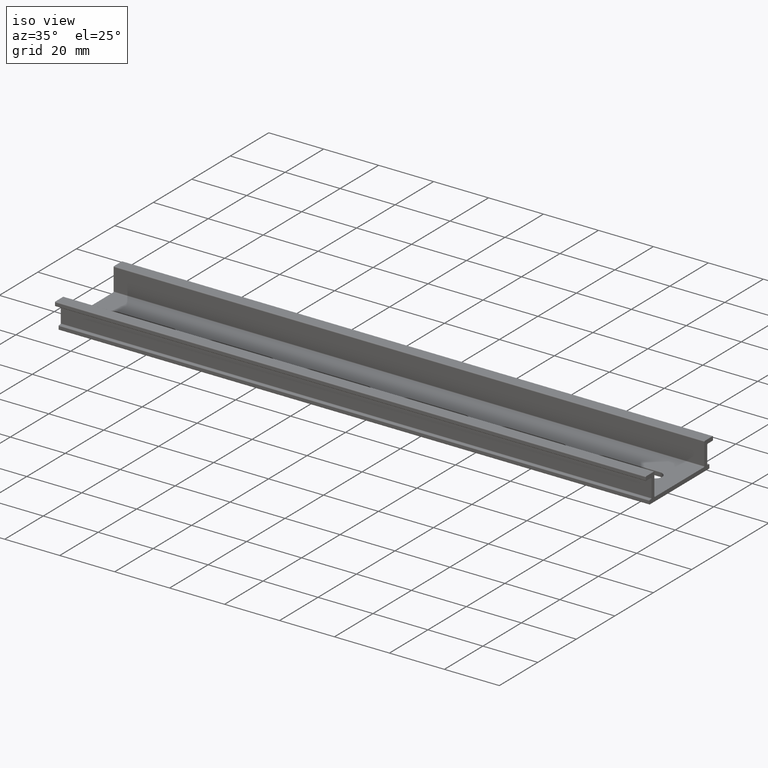
[diagram: clean part render]
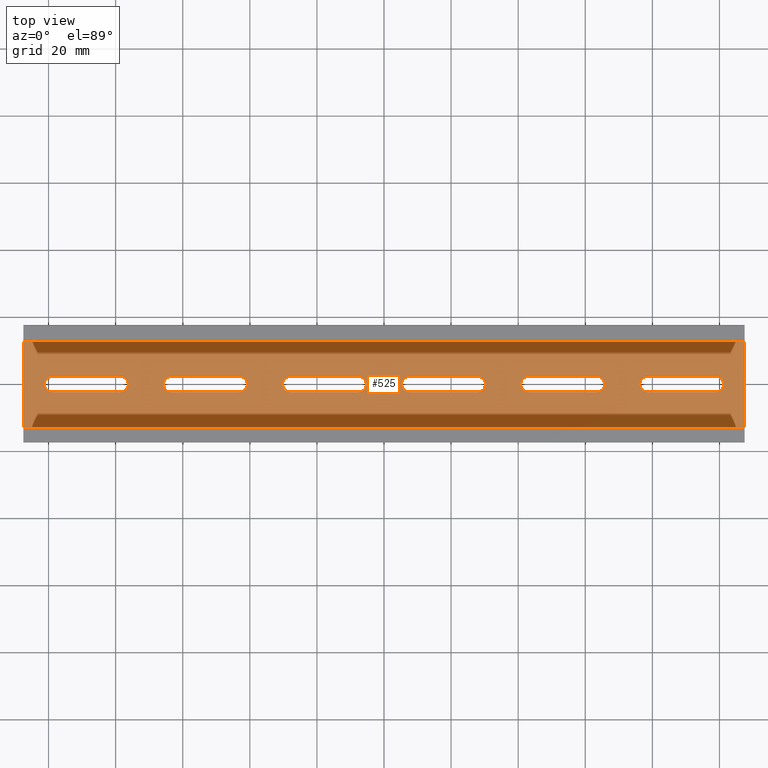
[diagram: tour spotlight — one face highlighted and labeled with its STEP entity id]
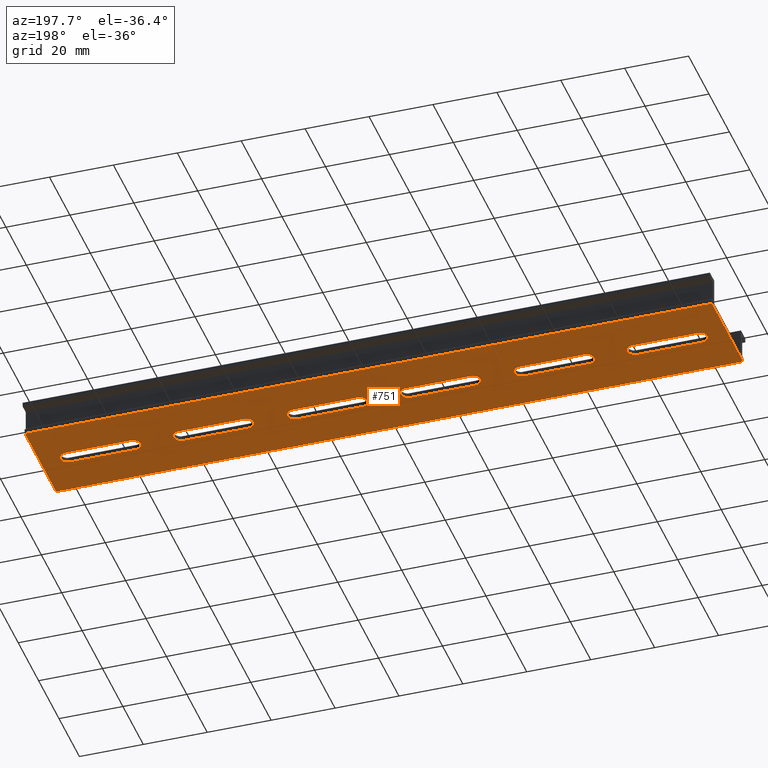
[diagram: tour spotlight — one face highlighted and labeled with its STEP entity id]
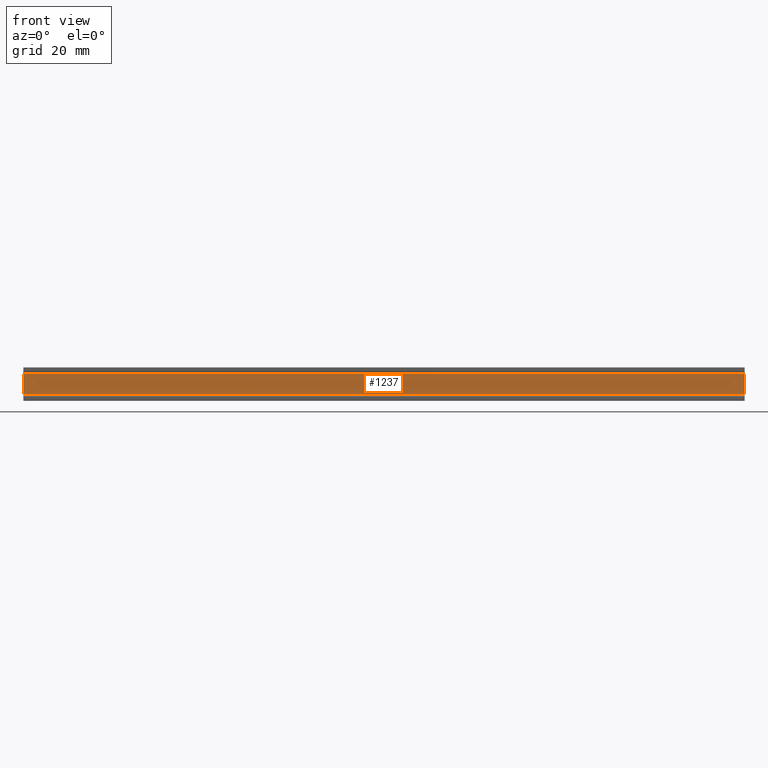
[diagram: tour spotlight — one face highlighted and labeled with its STEP entity id]
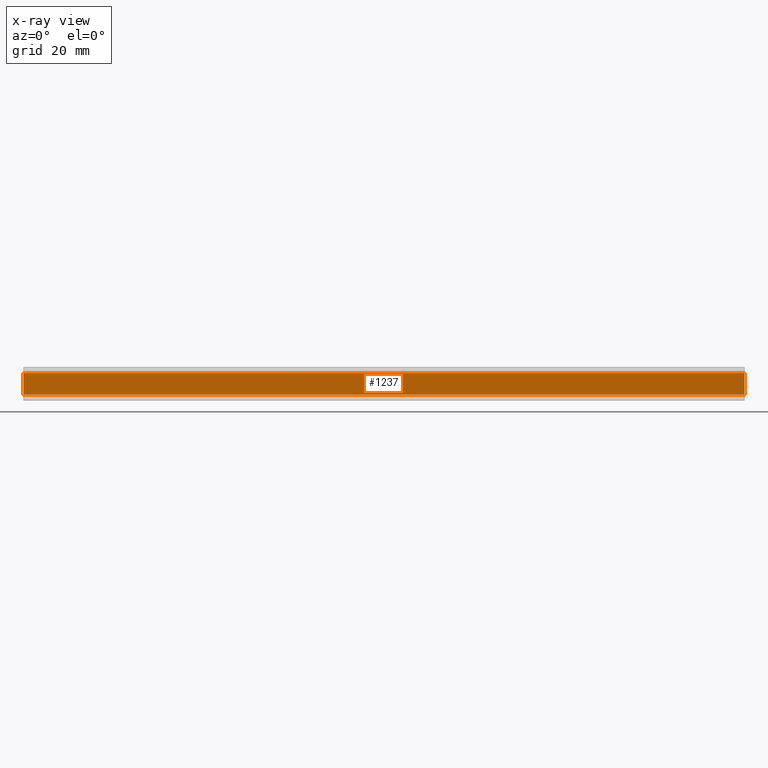
[diagram: x-ray of the same camera — body ghosted, this tour face saturated]
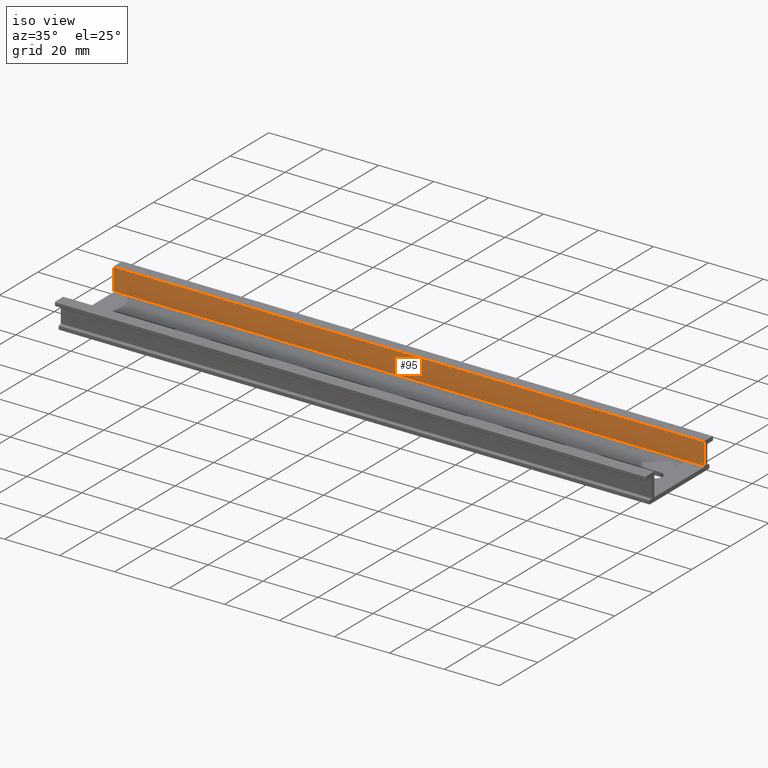
[diagram: tour spotlight — one face highlighted and labeled with its STEP entity id]
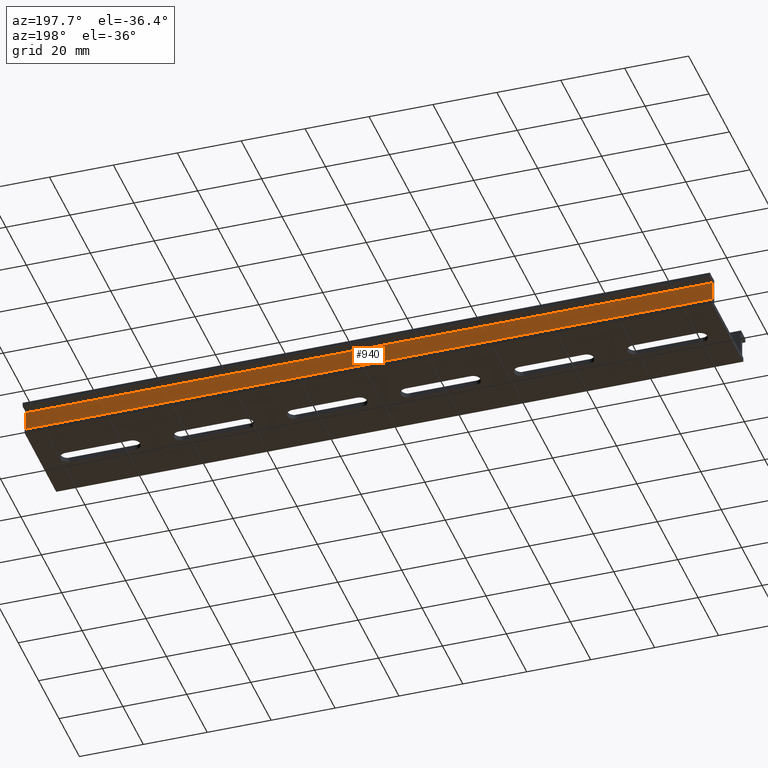
[diagram: tour spotlight — one face highlighted and labeled with its STEP entity id]
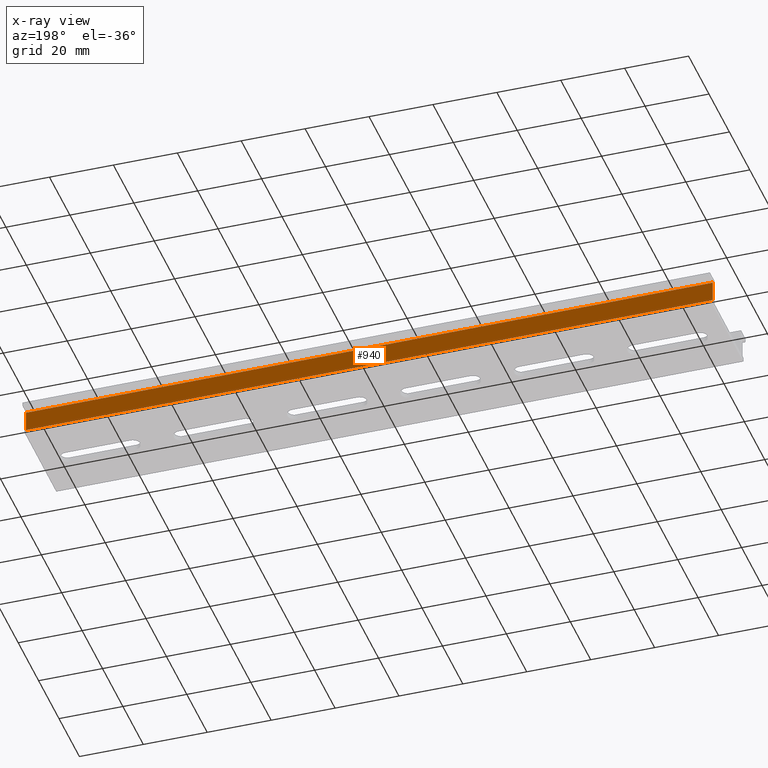
[diagram: x-ray of the same camera — body ghosted, this tour face saturated]
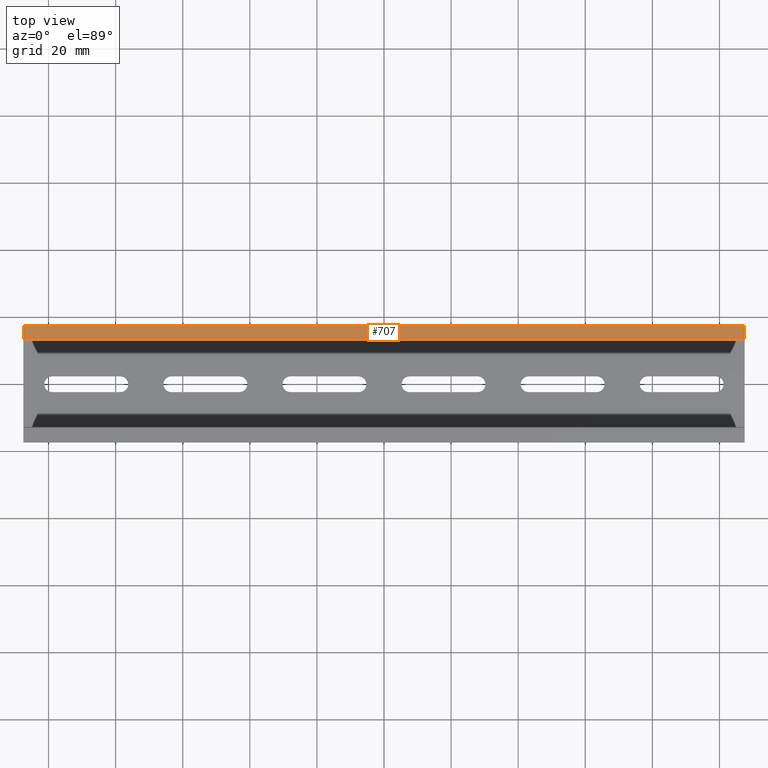
[diagram: tour spotlight — one face highlighted and labeled with its STEP entity id]
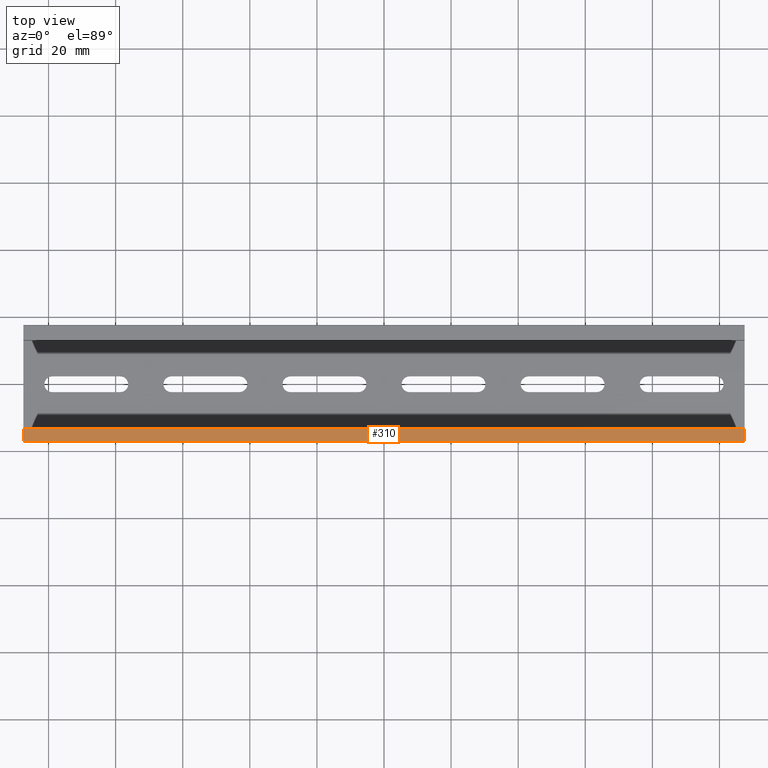
[diagram: tour spotlight — one face highlighted and labeled with its STEP entity id]
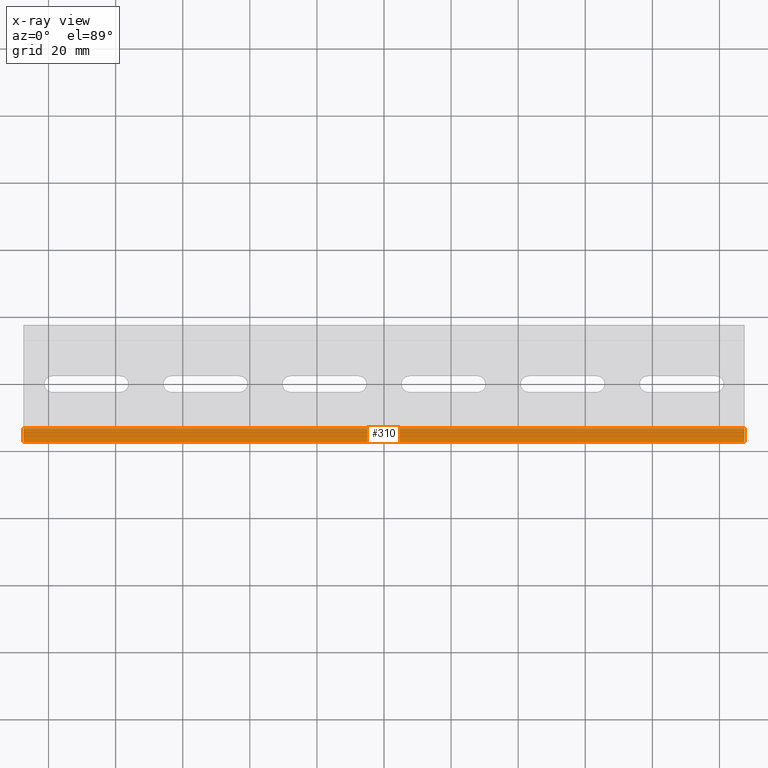
[diagram: x-ray of the same camera — body ghosted, this tour face saturated]
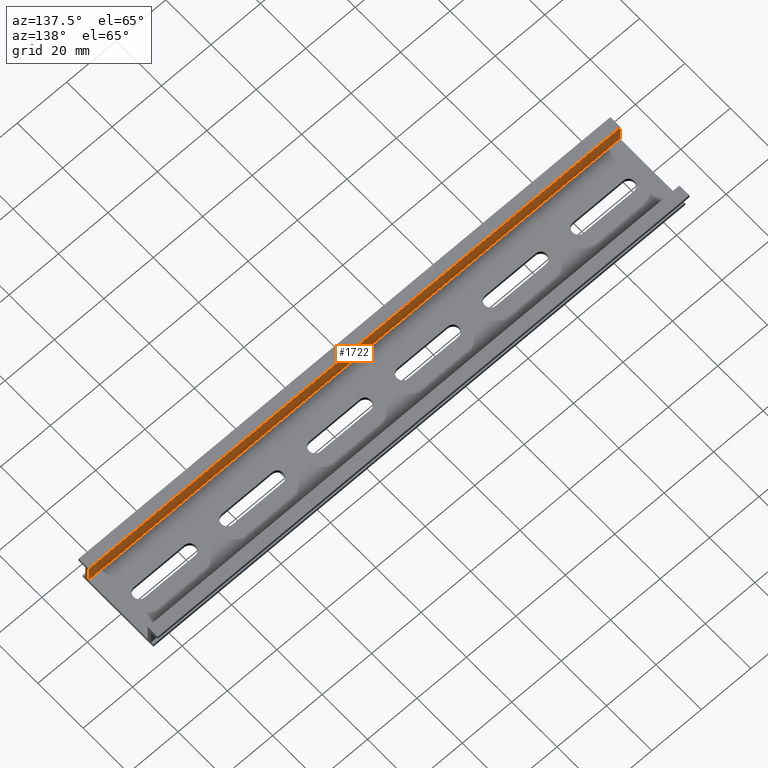
[diagram: tour spotlight — one face highlighted and labeled with its STEP entity id]
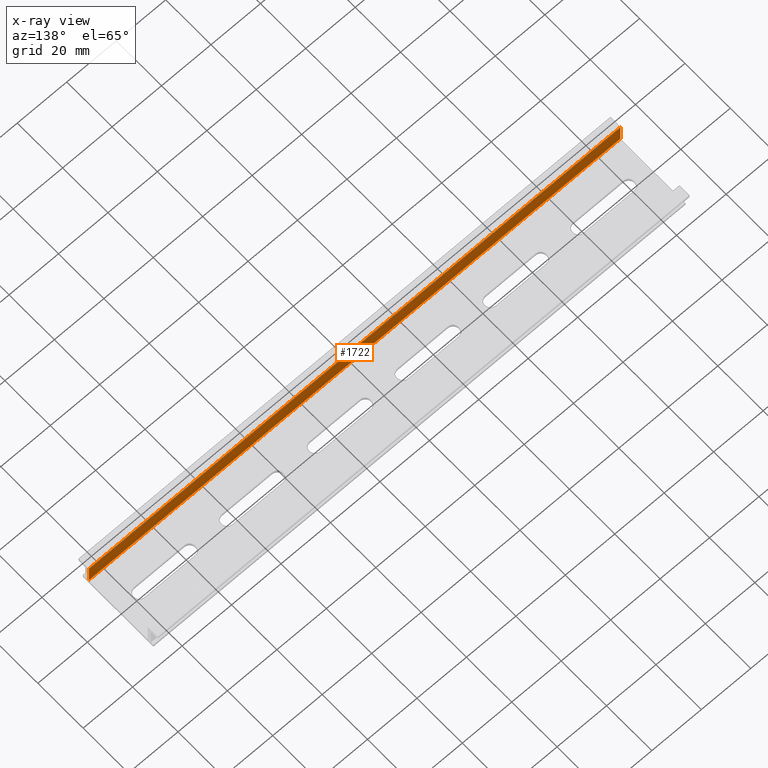
[diagram: x-ray of the same camera — body ghosted, this tour face saturated]
A machine part: a face-by-face anatomy tour. The part has 58 B-rep faces; the first image is the clean iso view, then the 8 largest visible faces are spotlighted one at a time (largest first), each with its STEP entity span.

Face 1 — top view, entity #525. In plain terms, the highlighted planar face has unit normal (0, 0, -1).
Definition (entity closure, byte-faithful):
#9 = LINE ( 'NONE', #1258, #1515 ) ;
#15 = ORIENTED_EDGE ( 'NONE', *, *, #396, .T. ) ;
#16 = CIRCLE ( 'NONE', #279, 2.349999999999997868 ) ;
#44 = DIRECTION ( 'NONE',  ( 0.000000000000000000, 1.000000000000000000, 1.845450506358307199E-15 ) ) ;
#52 = AXIS2_PLACEMENT_3D ( 'NONE', #1078, #1357, #130 ) ;
#53 = CARTESIAN_POINT ( 'NONE',  ( 63.40000000000002700, 7.772756789653923266E-16, -3.499999999999977351 ) ) ;
#56 = CARTESIAN_POINT ( 'NONE',  ( 107.5000000000000000, 12.73195706823932127, -3.499999999999955147 ) ) ;
#64 = ORIENTED_EDGE ( 'NONE', *, *, #902, .T. ) ;
#72 = CARTESIAN_POINT ( 'NONE',  ( -43.09999999999997300, 2.349999999999993872, -3.499999999999973355 ) ) ;
#93 = CARTESIAN_POINT ( 'NONE',  ( -7.600000000000028955, -7.395391830340371707E-16, -3.499999999999977351 ) ) ;
#102 = AXIS2_PLACEMENT_3D ( 'NONE', #784, #501, #1280 ) ;
#130 = DIRECTION ( 'NONE',  ( 0.000000000000000000, 1.000000000000000000, 1.845450506358307199E-15 ) ) ;
#132 = CARTESIAN_POINT ( 'NONE',  ( 107.5000000000000000, 12.73195706823932127, -3.499999999999955147 ) ) ;
#156 = CARTESIAN_POINT ( 'NONE',  ( -63.39999999999997016, 2.349999999999993872, -3.499999999999973355 ) ) ;
#162 = EDGE_CURVE ( 'NONE', #1468, #1158, #1021, .T. ) ;
#163 = CARTESIAN_POINT ( 'NONE',  ( 36.50000000000000711, -2.350000000000002753, -3.499999999999981792 ) ) ;
#174 = AXIS2_PLACEMENT_3D ( 'NONE', #662, #1133, #44 ) ;
#192 = VERTEX_POINT ( 'NONE', #941 ) ;
#194 = EDGE_CURVE ( 'NONE', #614, #1460, #1704, .T. ) ;
#206 = FACE_BOUND ( 'NONE', #1510, .T. ) ;
#210 = AXIS2_PLACEMENT_3D ( 'NONE', #56, #479, #1437 ) ;
#219 = CARTESIAN_POINT ( 'NONE',  ( -27.89999999999997371, 2.349999999999996980, -3.499999999999973355 ) ) ;
#224 = CARTESIAN_POINT ( 'NONE',  ( -107.5000000000000000, -12.73195706823929996, -3.500000000000022204 ) ) ;
#232 = DIRECTION ( 'NONE',  ( 0.000000000000000000, 1.771244205963780355E-15, -1.000000000000000000 ) ) ;
#235 = VERTEX_POINT ( 'NONE', #875 ) ;
#240 = AXIS2_PLACEMENT_3D ( 'NONE', #265, #2021, #734 ) ;
#257 = EDGE_LOOP ( 'NONE', ( #760, #1626, #831, #1955 ) ) ;
#265 = CARTESIAN_POINT ( 'NONE',  ( 27.90000000000002700, -7.395391830340371707E-16, -3.499999999999977351 ) ) ;
#279 = AXIS2_PLACEMENT_3D ( 'NONE', #53, #977, #1774 ) ;
#282 = LINE ( 'NONE', #773, #1286 ) ;
#289 = DIRECTION ( 'NONE',  ( 1.000000000000000000, -0.000000000000000000, 0.000000000000000000 ) ) ;
#296 = DIRECTION ( 'NONE',  ( -1.000000000000000000, 0.000000000000000000, 0.000000000000000000 ) ) ;
#307 = VERTEX_POINT ( 'NONE', #717 ) ;
#322 = CARTESIAN_POINT ( 'NONE',  ( -78.60000000000002274, -2.350000000000001865, -3.499999999999981792 ) ) ;
#324 = LINE ( 'NONE', #1569, #1637 ) ;
#325 = DIRECTION ( 'NONE',  ( 0.000000000000000000, 1.771244205963780355E-15, -1.000000000000000000 ) ) ;
#346 = CIRCLE ( 'NONE', #240, 2.349999999999997868 ) ;
#347 = DIRECTION ( 'NONE',  ( -1.000000000000000000, -0.000000000000000000, -0.000000000000000000 ) ) ;
#351 = DIRECTION ( 'NONE',  ( 1.000000000000000000, -0.000000000000000000, 0.000000000000000000 ) ) ;
#356 = FACE_OUTER_BOUND ( 'NONE', #1161, .T. ) ;
#378 = AXIS2_PLACEMENT_3D ( 'NONE', #942, #1098, #625 ) ;
#396 = EDGE_CURVE ( 'NONE', #404, #1883, #282, .T. ) ;
#397 = AXIS2_PLACEMENT_3D ( 'NONE', #1960, #1640, #1005 ) ;
#404 = VERTEX_POINT ( 'NONE', #1053 ) ;
#411 = DIRECTION ( 'NONE',  ( 0.000000000000000000, 1.000000000000000000, 1.845450506358307199E-15 ) ) ;
#428 = VECTOR ( 'NONE', #1996, 1000.000000000000000 ) ;
#433 = VERTEX_POINT ( 'NONE', #322 ) ;
#441 = LINE ( 'NONE', #566, #1014 ) ;
#442 = ORIENTED_EDGE ( 'NONE', *, *, #575, .T. ) ;
#454 = EDGE_CURVE ( 'NONE', #1180, #1091, #1879, .T. ) ;
#465 = VERTEX_POINT ( 'NONE', #900 ) ;
#472 = CARTESIAN_POINT ( 'NONE',  ( 78.60000000000002274, 2.294090540964821922E-15, -3.499999999999977351 ) ) ;
#479 = DIRECTION ( 'NONE',  ( 0.000000000000000000, 1.771244205963780355E-15, -1.000000000000000000 ) ) ;
#483 = CARTESIAN_POINT ( 'NONE',  ( 27.90000000000002700, 2.349999999999996980, -3.499999999999973355 ) ) ;
#501 = DIRECTION ( 'NONE',  ( 0.000000000000000000, 1.771244205963780355E-15, -1.000000000000000000 ) ) ;
#505 = EDGE_LOOP ( 'NONE', ( #1008, #533, #1905, #64 ) ) ;
#518 = CARTESIAN_POINT ( 'NONE',  ( -7.599999999999974776, 2.349999999999996980, -3.499999999999973355 ) ) ;
#519 = ORIENTED_EDGE ( 'NONE', *, *, #454, .T. ) ;
#520 = VECTOR ( 'NONE', #542, 1000.000000000000000 ) ;
#525 = ADVANCED_FACE ( 'NONE', ( #783, #1902, #1613, #206, #825, #1293, #356 ), #817, .F. ) ;
#533 = ORIENTED_EDGE ( 'NONE', *, *, #978, .T. ) ;
#542 = DIRECTION ( 'NONE',  ( 1.000000000000000000, -0.000000000000000000, 0.000000000000000000 ) ) ;
#562 = EDGE_CURVE ( 'NONE', #1760, #1686, #947, .T. ) ;
#566 = CARTESIAN_POINT ( 'NONE',  ( 107.5000000000000000, 12.73195706823932127, -3.499999999999955147 ) ) ;
#575 = EDGE_CURVE ( 'NONE', #791, #1180, #1771, .T. ) ;
#584 = VECTOR ( 'NONE', #296, 1000.000000000000000 ) ;
#600 = LINE ( 'NONE', #764, #830 ) ;
#604 = EDGE_CURVE ( 'NONE', #1780, #614, #1583, .T. ) ;
#614 = VERTEX_POINT ( 'NONE', #1567 ) ;
#625 = DIRECTION ( 'NONE',  ( 0.000000000000000000, 1.000000000000000000, 1.845450506358307199E-15 ) ) ;
#626 = EDGE_CURVE ( 'NONE', #465, #1468, #9, .T. ) ;
#631 = CIRCLE ( 'NONE', #174, 2.349999999999997868 ) ;
#645 = DIRECTION ( 'NONE',  ( -1.000000000000000000, -0.000000000000000000, -0.000000000000000000 ) ) ;
#662 = CARTESIAN_POINT ( 'NONE',  ( 7.600000000000027178, -7.395391830340371707E-16, -3.499999999999977351 ) ) ;
#674 = ORIENTED_EDGE ( 'NONE', *, *, #742, .T. ) ;
#679 = EDGE_LOOP ( 'NONE', ( #1023, #1036, #1268, #1148 ) ) ;
#682 = CARTESIAN_POINT ( 'NONE',  ( -107.5000000000000000, 12.73195706823932127, -3.499999999999955147 ) ) ;
#685 = AXIS2_PLACEMENT_3D ( 'NONE', #871, #723, #1348 ) ;
#692 = CARTESIAN_POINT ( 'NONE',  ( 178.5000000000000000, 2.349999999999999201, -3.499999999999973355 ) ) ;
#709 = ORIENTED_EDGE ( 'NONE', *, *, #1887, .T. ) ;
#717 = CARTESIAN_POINT ( 'NONE',  ( 43.10000000000002984, -2.349999999999997868, -3.499999999999981792 ) ) ;
#720 = CIRCLE ( 'NONE', #685, 2.349999999999997868 ) ;
#723 = DIRECTION ( 'NONE',  ( 0.000000000000000000, 1.771244205963780355E-15, -1.000000000000000000 ) ) ;
#724 = LINE ( 'NONE', #692, #1881 ) ;
#734 = DIRECTION ( 'NONE',  ( 0.000000000000000000, 1.000000000000000000, 1.845450506358307199E-15 ) ) ;
#742 = EDGE_CURVE ( 'NONE', #1158, #1645, #724, .T. ) ;
#760 = ORIENTED_EDGE ( 'NONE', *, *, #1582, .T. ) ;
#763 = DIRECTION ( 'NONE',  ( 0.000000000000000000, -1.000000000000000000, -1.771244205963780158E-15 ) ) ;
#764 = CARTESIAN_POINT ( 'NONE',  ( 107.5000000000000000, -2.349999999999999645, -3.499999999999981792 ) ) ;
#766 = VERTEX_POINT ( 'NONE', #1524 ) ;
#773 = CARTESIAN_POINT ( 'NONE',  ( 36.50000000000000711, 2.349999999999992983, -3.499999999999973355 ) ) ;
#774 = EDGE_CURVE ( 'NONE', #1645, #465, #993, .T. ) ;
#777 = DIRECTION ( 'NONE',  ( 1.000000000000000000, -0.000000000000000000, 0.000000000000000000 ) ) ;
#783 = FACE_BOUND ( 'NONE', #962, .T. ) ;
#784 = CARTESIAN_POINT ( 'NONE',  ( 43.10000000000002984, 7.772756789653923266E-16, -3.499999999999977351 ) ) ;
#791 = VERTEX_POINT ( 'NONE', #132 ) ;
#805 = DIRECTION ( 'NONE',  ( -1.000000000000000000, 0.000000000000000000, 0.000000000000000000 ) ) ;
#817 = PLANE ( 'NONE',  #210 ) ;
#819 = CARTESIAN_POINT ( 'NONE',  ( -63.39999999999997016, -2.350000000000001421, -3.499999999999981792 ) ) ;
#825 = FACE_BOUND ( 'NONE', #505, .T. ) ;
#829 = ORIENTED_EDGE ( 'NONE', *, *, #1706, .T. ) ;
#830 = VECTOR ( 'NONE', #1856, 1000.000000000000000 ) ;
#831 = ORIENTED_EDGE ( 'NONE', *, *, #1448, .T. ) ;
#838 = ORIENTED_EDGE ( 'NONE', *, *, #774, .T. ) ;
#871 = CARTESIAN_POINT ( 'NONE',  ( -98.89999999999996305, -3.773168907032896067E-15, -3.499999999999977351 ) ) ;
#874 = CARTESIAN_POINT ( 'NONE',  ( 63.40000000000002700, 2.349999999999998312, -3.499999999999973355 ) ) ;
#875 = CARTESIAN_POINT ( 'NONE',  ( -27.89999999999996660, -2.349999999999999645, -3.499999999999981792 ) ) ;
#891 = AXIS2_PLACEMENT_3D ( 'NONE', #1990, #1224, #1081 ) ;
#892 = VECTOR ( 'NONE', #777, 1000.000000000000000 ) ;
#900 = CARTESIAN_POINT ( 'NONE',  ( 98.90000000000001990, -2.349999999999995648, -3.499999999999981792 ) ) ;
#902 = EDGE_CURVE ( 'NONE', #1436, #1215, #346, .T. ) ;
#911 = EDGE_CURVE ( 'NONE', #192, #235, #600, .T. ) ;
#921 = AXIS2_PLACEMENT_3D ( 'NONE', #963, #1144, #1127 ) ;
#941 = CARTESIAN_POINT ( 'NONE',  ( -7.600000000000028955, -2.349999999999998757, -3.499999999999981792 ) ) ;
#942 = CARTESIAN_POINT ( 'NONE',  ( -78.60000000000002274, -3.773168907032896067E-15, -3.499999999999977351 ) ) ;
#947 = LINE ( 'NONE', #1410, #1024 ) ;
#953 = LINE ( 'NONE', #1431, #892 ) ;
#962 = EDGE_LOOP ( 'NONE', ( #829, #1016, #15, #1612 ) ) ;
#963 = CARTESIAN_POINT ( 'NONE',  ( -43.09999999999997300, -3.773168907032896067E-15, -3.499999999999977351 ) ) ;
#977 = DIRECTION ( 'NONE',  ( 0.000000000000000000, 1.771244205963780355E-15, -1.000000000000000000 ) ) ;
#978 = EDGE_CURVE ( 'NONE', #1083, #1312, #631, .T. ) ;
#984 = VERTEX_POINT ( 'NONE', #1768 ) ;
#993 = CIRCLE ( 'NONE', #891, 2.349999999999997868 ) ;
#1005 = DIRECTION ( 'NONE',  ( 0.000000000000000000, 1.000000000000000000, 1.845450506358307199E-15 ) ) ;
#1008 = ORIENTED_EDGE ( 'NONE', *, *, #1476, .T. ) ;
#1014 = VECTOR ( 'NONE', #763, 1000.000000000000000 ) ;
#1016 = ORIENTED_EDGE ( 'NONE', *, *, #1599, .T. ) ;
#1018 = ORIENTED_EDGE ( 'NONE', *, *, #1248, .T. ) ;
#1021 = CIRCLE ( 'NONE', #1183, 2.349999999999997868 ) ;
#1022 = CARTESIAN_POINT ( 'NONE',  ( -78.59999999999998010, 2.349999999999993872, -3.499999999999973355 ) ) ;
#1023 = ORIENTED_EDGE ( 'NONE', *, *, #911, .T. ) ;
#1024 = VECTOR ( 'NONE', #1778, 1000.000000000000000 ) ;
#1036 = ORIENTED_EDGE ( 'NONE', *, *, #1752, .T. ) ;
#1039 = CARTESIAN_POINT ( 'NONE',  ( 107.5000000000000000, -2.349999999999999645, -3.499999999999981792 ) ) ;
#1053 = CARTESIAN_POINT ( 'NONE',  ( -98.89999999999996305, 2.349999999999993872, -3.499999999999973355 ) ) ;
#1078 = CARTESIAN_POINT ( 'NONE',  ( -63.39999999999997016, -3.773168907032896067E-15, -3.499999999999977351 ) ) ;
#1081 = DIRECTION ( 'NONE',  ( 0.000000000000000000, 1.000000000000000000, 1.845450506358307199E-15 ) ) ;
#1083 = VERTEX_POINT ( 'NONE', #1590 ) ;
#1086 = DIRECTION ( 'NONE',  ( 0.000000000000000000, 1.000000000000000000, 1.845450506358307199E-15 ) ) ;
#1089 = CIRCLE ( 'NONE', #52, 2.349999999999997868 ) ;
#1091 = VERTEX_POINT ( 'NONE', #224 ) ;
#1094 = ORIENTED_EDGE ( 'NONE', *, *, #194, .T. ) ;
#1098 = DIRECTION ( 'NONE',  ( 0.000000000000000000, 1.771244205963780355E-15, -1.000000000000000000 ) ) ;
#1127 = DIRECTION ( 'NONE',  ( 0.000000000000000000, 1.000000000000000000, 1.845450506358307199E-15 ) ) ;
#1128 = LINE ( 'NONE', #163, #1703 ) ;
#1133 = DIRECTION ( 'NONE',  ( 0.000000000000000000, 1.771244205963780355E-15, -1.000000000000000000 ) ) ;
#1139 = CARTESIAN_POINT ( 'NONE',  ( 78.60000000000002274, -2.349999999999996092, -3.499999999999981792 ) ) ;
#1144 = DIRECTION ( 'NONE',  ( 0.000000000000000000, 1.771244205963780355E-15, -1.000000000000000000 ) ) ;
#1148 = ORIENTED_EDGE ( 'NONE', *, *, #1156, .T. ) ;
#1154 = AXIS2_PLACEMENT_3D ( 'NONE', #93, #232, #411 ) ;
#1156 = EDGE_CURVE ( 'NONE', #1686, #192, #1517, .T. ) ;
#1158 = VERTEX_POINT ( 'NONE', #1502 ) ;
#1161 = EDGE_LOOP ( 'NONE', ( #519, #1925, #1433, #442 ) ) ;
#1180 = VERTEX_POINT ( 'NONE', #682 ) ;
#1183 = AXIS2_PLACEMENT_3D ( 'NONE', #472, #325, #1086 ) ;
#1200 = ORIENTED_EDGE ( 'NONE', *, *, #162, .T. ) ;
#1203 = LINE ( 'NONE', #1375, #584 ) ;
#1215 = VERTEX_POINT ( 'NONE', #1949 ) ;
#1224 = DIRECTION ( 'NONE',  ( 0.000000000000000000, 1.771244205963780355E-15, -1.000000000000000000 ) ) ;
#1248 = EDGE_CURVE ( 'NONE', #1460, #1380, #1089, .T. ) ;
#1258 = CARTESIAN_POINT ( 'NONE',  ( 178.5000000000000000, -2.349999999999996536, -3.499999999999981792 ) ) ;
#1268 = ORIENTED_EDGE ( 'NONE', *, *, #562, .T. ) ;
#1275 = CIRCLE ( 'NONE', #397, 2.349999999999997868 ) ;
#1280 = DIRECTION ( 'NONE',  ( 0.000000000000000000, 1.000000000000000000, 1.845450506358307199E-15 ) ) ;
#1286 = VECTOR ( 'NONE', #289, 1000.000000000000000 ) ;
#1293 = FACE_BOUND ( 'NONE', #679, .T. ) ;
#1302 = CARTESIAN_POINT ( 'NONE',  ( 107.5000000000000000, 12.73195706823932127, -3.499999999999955147 ) ) ;
#1312 = VERTEX_POINT ( 'NONE', #1863 ) ;
#1348 = DIRECTION ( 'NONE',  ( 0.000000000000000000, 1.000000000000000000, 1.845450506358307199E-15 ) ) ;
#1357 = DIRECTION ( 'NONE',  ( 0.000000000000000000, 1.771244205963780355E-15, -1.000000000000000000 ) ) ;
#1363 = EDGE_CURVE ( 'NONE', #1883, #433, #1420, .T. ) ;
#1372 = CIRCLE ( 'NONE', #102, 2.349999999999997868 ) ;
#1375 = CARTESIAN_POINT ( 'NONE',  ( 143.0000000000000000, -2.349999999999998312, -3.499999999999981792 ) ) ;
#1380 = VERTEX_POINT ( 'NONE', #156 ) ;
#1410 = CARTESIAN_POINT ( 'NONE',  ( 107.5000000000000000, 2.349999999999996092, -3.499999999999973355 ) ) ;
#1411 = DIRECTION ( 'NONE',  ( -1.000000000000000000, 0.000000000000000000, 0.000000000000000000 ) ) ;
#1417 = LINE ( 'NONE', #1871, #1717 ) ;
#1420 = CIRCLE ( 'NONE', #378, 2.349999999999997868 ) ;
#1423 = EDGE_CURVE ( 'NONE', #1312, #1436, #1417, .T. ) ;
#1431 = CARTESIAN_POINT ( 'NONE',  ( 143.0000000000000000, 2.349999999999997424, -3.499999999999973355 ) ) ;
#1433 = ORIENTED_EDGE ( 'NONE', *, *, #1541, .F. ) ;
#1436 = VERTEX_POINT ( 'NONE', #483 ) ;
#1437 = DIRECTION ( 'NONE',  ( 0.000000000000000000, 1.000000000000000000, 1.771244205963780355E-15 ) ) ;
#1448 = EDGE_CURVE ( 'NONE', #984, #1805, #953, .T. ) ;
#1457 = EDGE_CURVE ( 'NONE', #1805, #1589, #16, .T. ) ;
#1460 = VERTEX_POINT ( 'NONE', #819 ) ;
#1468 = VERTEX_POINT ( 'NONE', #1139 ) ;
#1476 = EDGE_CURVE ( 'NONE', #1215, #1083, #1826, .T. ) ;
#1502 = CARTESIAN_POINT ( 'NONE',  ( 78.60000000000002274, 2.350000000000000089, -3.499999999999973355 ) ) ;
#1510 = EDGE_LOOP ( 'NONE', ( #1094, #1018, #709, #1986 ) ) ;
#1515 = VECTOR ( 'NONE', #805, 1000.000000000000000 ) ;
#1517 = CIRCLE ( 'NONE', #1154, 2.349999999999997868 ) ;
#1524 = CARTESIAN_POINT ( 'NONE',  ( -98.89999999999994884, -2.350000000000001421, -3.499999999999981792 ) ) ;
#1533 = CARTESIAN_POINT ( 'NONE',  ( 63.40000000000002700, -2.349999999999997424, -3.499999999999981792 ) ) ;
#1539 = VERTEX_POINT ( 'NONE', #2019 ) ;
#1541 = EDGE_CURVE ( 'NONE', #791, #1539, #441, .T. ) ;
#1559 = DIRECTION ( 'NONE',  ( 0.000000000000000000, -1.000000000000000000, -1.771244205963780158E-15 ) ) ;
#1567 = CARTESIAN_POINT ( 'NONE',  ( -43.09999999999997300, -2.350000000000001865, -3.499999999999981792 ) ) ;
#1569 = CARTESIAN_POINT ( 'NONE',  ( 107.5000000000000000, -12.73195706823929996, -3.500000000000022204 ) ) ;
#1582 = EDGE_CURVE ( 'NONE', #1589, #307, #1203, .T. ) ;
#1583 = CIRCLE ( 'NONE', #921, 2.349999999999997868 ) ;
#1589 = VERTEX_POINT ( 'NONE', #1533 ) ;
#1590 = CARTESIAN_POINT ( 'NONE',  ( 7.600000000000023626, -2.349999999999999645, -3.499999999999981792 ) ) ;
#1599 = EDGE_CURVE ( 'NONE', #766, #404, #720, .T. ) ;
#1612 = ORIENTED_EDGE ( 'NONE', *, *, #1363, .T. ) ;
#1613 = FACE_BOUND ( 'NONE', #257, .T. ) ;
#1624 = LINE ( 'NONE', #1819, #520 ) ;
#1626 = ORIENTED_EDGE ( 'NONE', *, *, #1685, .T. ) ;
#1637 = VECTOR ( 'NONE', #347, 1000.000000000000000 ) ;
#1640 = DIRECTION ( 'NONE',  ( 0.000000000000000000, 1.771244205963780355E-15, -1.000000000000000000 ) ) ;
#1645 = VERTEX_POINT ( 'NONE', #1728 ) ;
#1682 = CARTESIAN_POINT ( 'NONE',  ( -107.5000000000000000, 12.73195706823932127, -3.499999999999955147 ) ) ;
#1685 = EDGE_CURVE ( 'NONE', #307, #984, #1372, .T. ) ;
#1686 = VERTEX_POINT ( 'NONE', #518 ) ;
#1694 = EDGE_CURVE ( 'NONE', #1539, #1091, #324, .T. ) ;
#1695 = EDGE_LOOP ( 'NONE', ( #1800, #1200, #674, #838 ) ) ;
#1703 = VECTOR ( 'NONE', #1411, 1000.000000000000000 ) ;
#1704 = LINE ( 'NONE', #1741, #1709 ) ;
#1706 = EDGE_CURVE ( 'NONE', #433, #766, #1128, .T. ) ;
#1709 = VECTOR ( 'NONE', #1870, 1000.000000000000000 ) ;
#1717 = VECTOR ( 'NONE', #351, 1000.000000000000000 ) ;
#1728 = CARTESIAN_POINT ( 'NONE',  ( 98.90000000000001990, 2.350000000000000089, -3.499999999999973355 ) ) ;
#1741 = CARTESIAN_POINT ( 'NONE',  ( 36.50000000000000711, -2.350000000000002753, -3.499999999999981792 ) ) ;
#1751 = VECTOR ( 'NONE', #1559, 1000.000000000000000 ) ;
#1752 = EDGE_CURVE ( 'NONE', #235, #1760, #1275, .T. ) ;
#1760 = VERTEX_POINT ( 'NONE', #219 ) ;
#1768 = CARTESIAN_POINT ( 'NONE',  ( 43.10000000000002984, 2.349999999999998312, -3.499999999999973355 ) ) ;
#1771 = LINE ( 'NONE', #1302, #1979 ) ;
#1774 = DIRECTION ( 'NONE',  ( 0.000000000000000000, 1.000000000000000000, 1.845450506358307199E-15 ) ) ;
#1778 = DIRECTION ( 'NONE',  ( 1.000000000000000000, -0.000000000000000000, 0.000000000000000000 ) ) ;
#1780 = VERTEX_POINT ( 'NONE', #72 ) ;
#1796 = DIRECTION ( 'NONE',  ( 1.000000000000000000, -0.000000000000000000, 0.000000000000000000 ) ) ;
#1800 = ORIENTED_EDGE ( 'NONE', *, *, #626, .T. ) ;
#1805 = VERTEX_POINT ( 'NONE', #874 ) ;
#1819 = CARTESIAN_POINT ( 'NONE',  ( 36.50000000000000711, 2.349999999999992983, -3.499999999999973355 ) ) ;
#1826 = LINE ( 'NONE', #1039, #428 ) ;
#1856 = DIRECTION ( 'NONE',  ( -1.000000000000000000, 0.000000000000000000, 0.000000000000000000 ) ) ;
#1863 = CARTESIAN_POINT ( 'NONE',  ( 7.600000000000027178, 2.349999999999996980, -3.499999999999973355 ) ) ;
#1870 = DIRECTION ( 'NONE',  ( -1.000000000000000000, 0.000000000000000000, 0.000000000000000000 ) ) ;
#1871 = CARTESIAN_POINT ( 'NONE',  ( 107.5000000000000000, 2.349999999999996092, -3.499999999999973355 ) ) ;
#1879 = LINE ( 'NONE', #1682, #1751 ) ;
#1881 = VECTOR ( 'NONE', #1796, 1000.000000000000000 ) ;
#1883 = VERTEX_POINT ( 'NONE', #1022 ) ;
#1887 = EDGE_CURVE ( 'NONE', #1380, #1780, #1624, .T. ) ;
#1902 = FACE_BOUND ( 'NONE', #1695, .T. ) ;
#1905 = ORIENTED_EDGE ( 'NONE', *, *, #1423, .T. ) ;
#1925 = ORIENTED_EDGE ( 'NONE', *, *, #1694, .F. ) ;
#1949 = CARTESIAN_POINT ( 'NONE',  ( 27.90000000000002700, -2.349999999999998757, -3.499999999999981792 ) ) ;
#1955 = ORIENTED_EDGE ( 'NONE', *, *, #1457, .T. ) ;
#1960 = CARTESIAN_POINT ( 'NONE',  ( -27.89999999999997371, -7.395391830340371707E-16, -3.499999999999977351 ) ) ;
#1979 = VECTOR ( 'NONE', #645, 1000.000000000000000 ) ;
#1986 = ORIENTED_EDGE ( 'NONE', *, *, #604, .T. ) ;
#1990 = CARTESIAN_POINT ( 'NONE',  ( 98.90000000000001990, 2.294090540964821922E-15, -3.499999999999977351 ) ) ;
#1996 = DIRECTION ( 'NONE',  ( -1.000000000000000000, 0.000000000000000000, 0.000000000000000000 ) ) ;
#2019 = CARTESIAN_POINT ( 'NONE',  ( 107.5000000000000000, -12.73195706823929996, -3.500000000000022204 ) ) ;
#2021 = DIRECTION ( 'NONE',  ( 0.000000000000000000, 1.771244205963780355E-15, -1.000000000000000000 ) ) ;

Face 2 — auxiliary view, entity #751. In plain terms, the highlighted planar face has unit normal (0, -0, 1).
Definition (entity closure, byte-faithful):
#5 = LINE ( 'NONE', #158, #275 ) ;
#11 = CIRCLE ( 'NONE', #112, 2.350000000000004974 ) ;
#12 = CIRCLE ( 'NONE', #79, 2.349999999999990763 ) ;
#17 = CARTESIAN_POINT ( 'NONE',  ( 43.10000000000002984, -2.349999999999997424, -5.000000000000029310 ) ) ;
#37 = EDGE_CURVE ( 'NONE', #1387, #1810, #1876, .T. ) ;
#38 = LINE ( 'NONE', #57, #1143 ) ;
#48 = DIRECTION ( 'NONE',  ( 1.000000000000000000, 0.000000000000000000, 0.000000000000000000 ) ) ;
#50 = EDGE_CURVE ( 'NONE', #1295, #379, #407, .T. ) ;
#57 = CARTESIAN_POINT ( 'NONE',  ( -63.39999999999997016, -2.350000000000001865, -5.000000000000029310 ) ) ;
#63 = CARTESIAN_POINT ( 'NONE',  ( -78.59999999999998010, 2.349999999999993872, -5.000000000000029310 ) ) ;
#66 = EDGE_CURVE ( 'NONE', #1653, #355, #462, .T. ) ;
#76 = CIRCLE ( 'NONE', #663, 2.349999999999997868 ) ;
#79 = AXIS2_PLACEMENT_3D ( 'NONE', #1399, #1835, #897 ) ;
#101 = EDGE_LOOP ( 'NONE', ( #1177, #1930, #1578, #1964 ) ) ;
#112 = AXIS2_PLACEMENT_3D ( 'NONE', #1646, #860, #1492 ) ;
#115 = VECTOR ( 'NONE', #1897, 1000.000000000000000 ) ;
#126 = VERTEX_POINT ( 'NONE', #768 ) ;
#128 = EDGE_CURVE ( 'NONE', #1304, #349, #1249, .T. ) ;
#139 = CIRCLE ( 'NONE', #1946, 2.349999999999997868 ) ;
#140 = EDGE_CURVE ( 'NONE', #1141, #150, #76, .T. ) ;
#146 = CARTESIAN_POINT ( 'NONE',  ( 27.90000000000002700, -7.395391830340371707E-16, -5.000000000000029310 ) ) ;
#150 = VERTEX_POINT ( 'NONE', #1239 ) ;
#151 = DIRECTION ( 'NONE',  ( 0.000000000000000000, 0.000000000000000000, 1.000000000000000000 ) ) ;
#158 = CARTESIAN_POINT ( 'NONE',  ( -107.5000000000000000, -15.33195706823929960, -5.000000000000000000 ) ) ;
#164 = EDGE_CURVE ( 'NONE', #1909, #342, #1413, .T. ) ;
#173 = CIRCLE ( 'NONE', #437, 2.350000000000004974 ) ;
#175 = CARTESIAN_POINT ( 'NONE',  ( 63.40000000000002700, 2.349999999999998312, -5.000000000000029310 ) ) ;
#196 = ORIENTED_EDGE ( 'NONE', *, *, #1271, .T. ) ;
#202 = ORIENTED_EDGE ( 'NONE', *, *, #1119, .T. ) ;
#204 = VECTOR ( 'NONE', #1379, 1000.000000000000000 ) ;
#208 = CARTESIAN_POINT ( 'NONE',  ( -107.5000000000000000, 15.33195706823929960, -4.999999999999945821 ) ) ;
#209 = ORIENTED_EDGE ( 'NONE', *, *, #1532, .T. ) ;
#245 = DIRECTION ( 'NONE',  ( 0.000000000000000000, -1.951739091585934843E-15, 1.000000000000000000 ) ) ;
#246 = CARTESIAN_POINT ( 'NONE',  ( -43.09999999999997300, 2.349999999999993872, -5.000000000000029310 ) ) ;
#247 = ORIENTED_EDGE ( 'NONE', *, *, #813, .T. ) ;
#264 = CARTESIAN_POINT ( 'NONE',  ( 63.40000000000002700, 2.349999999999998312, -5.000000000000029310 ) ) ;
#273 = CARTESIAN_POINT ( 'NONE',  ( -78.60000000000002274, -3.773168907032896067E-15, -5.000000000000029310 ) ) ;
#274 = CARTESIAN_POINT ( 'NONE',  ( 43.10000000000002984, 7.772756789653923266E-16, -5.000000000000029310 ) ) ;
#275 = VECTOR ( 'NONE', #630, 1000.000000000000000 ) ;
#281 = ORIENTED_EDGE ( 'NONE', *, *, #849, .T. ) ;
#287 = DIRECTION ( 'NONE',  ( 0.000000000000000000, 0.000000000000000000, 1.000000000000000000 ) ) ;
#290 = VERTEX_POINT ( 'NONE', #659 ) ;
#300 = CARTESIAN_POINT ( 'NONE',  ( 63.40000000000002700, -2.349999999999997868, -4.999999999999975131 ) ) ;
#306 = AXIS2_PLACEMENT_3D ( 'NONE', #583, #1841, #1059 ) ;
#318 = LINE ( 'NONE', #1564, #538 ) ;
#335 = VERTEX_POINT ( 'NONE', #1652 ) ;
#336 = CARTESIAN_POINT ( 'NONE',  ( -27.89999999999997371, -7.395391830340371707E-16, -5.000000000000029310 ) ) ;
#342 = VERTEX_POINT ( 'NONE', #1660 ) ;
#349 = VERTEX_POINT ( 'NONE', #1849 ) ;
#352 = EDGE_CURVE ( 'NONE', #349, #857, #139, .T. ) ;
#355 = VERTEX_POINT ( 'NONE', #300 ) ;
#379 = VERTEX_POINT ( 'NONE', #1084 ) ;
#391 = FACE_OUTER_BOUND ( 'NONE', #101, .T. ) ;
#407 = CIRCLE ( 'NONE', #306, 2.349999999999997868 ) ;
#410 = ORIENTED_EDGE ( 'NONE', *, *, #1655, .T. ) ;
#417 = VERTEX_POINT ( 'NONE', #613 ) ;
#437 = AXIS2_PLACEMENT_3D ( 'NONE', #1278, #1603, #1456 ) ;
#443 = CARTESIAN_POINT ( 'NONE',  ( 78.60000000000002274, -2.349999999999995648, -5.000000000000029310 ) ) ;
#451 = LINE ( 'NONE', #1050, #1385 ) ;
#462 = LINE ( 'NONE', #17, #593 ) ;
#475 = CARTESIAN_POINT ( 'NONE',  ( 107.5000000000000000, -15.33195706823929960, -5.000000000000000000 ) ) ;
#476 = EDGE_CURVE ( 'NONE', #150, #1909, #623, .T. ) ;
#480 = CARTESIAN_POINT ( 'NONE',  ( 43.10000000000002984, -2.349999999999997424, -5.000000000000029310 ) ) ;
#485 = DIRECTION ( 'NONE',  ( 0.000000000000000000, 0.000000000000000000, 1.000000000000000000 ) ) ;
#487 = ORIENTED_EDGE ( 'NONE', *, *, #775, .T. ) ;
#491 = CARTESIAN_POINT ( 'NONE',  ( 78.60000000000002274, -2.349999999999995648, -5.000000000000029310 ) ) ;
#494 = DIRECTION ( 'NONE',  ( 0.000000000000000000, 0.000000000000000000, 1.000000000000000000 ) ) ;
#498 = VECTOR ( 'NONE', #1907, 1000.000000000000000 ) ;
#502 = ORIENTED_EDGE ( 'NONE', *, *, #1678, .T. ) ;
#510 = LINE ( 'NONE', #491, #1869 ) ;
#522 = EDGE_CURVE ( 'NONE', #1126, #1387, #666, .T. ) ;
#527 = FACE_BOUND ( 'NONE', #1287, .T. ) ;
#528 = AXIS2_PLACEMENT_3D ( 'NONE', #336, #2026, #1552 ) ;
#536 = ORIENTED_EDGE ( 'NONE', *, *, #540, .T. ) ;
#538 = VECTOR ( 'NONE', #957, 1000.000000000000000 ) ;
#540 = EDGE_CURVE ( 'NONE', #1110, #881, #173, .T. ) ;
#583 = CARTESIAN_POINT ( 'NONE',  ( -63.39999999999997016, -3.773168907032896067E-15, -5.000000000000029310 ) ) ;
#588 = CARTESIAN_POINT ( 'NONE',  ( 98.90000000000001990, 2.350000000000000089, -5.000000000000029310 ) ) ;
#593 = VECTOR ( 'NONE', #1573, 1000.000000000000000 ) ;
#613 = CARTESIAN_POINT ( 'NONE',  ( -107.5000000000000000, -15.33195706823929960, -5.000000000000000000 ) ) ;
#620 = CARTESIAN_POINT ( 'NONE',  ( 27.90000000000002700, 2.349999999999996980, -5.000000000000029310 ) ) ;
#623 = LINE ( 'NONE', #1075, #1918 ) ;
#630 = DIRECTION ( 'NONE',  ( 0.000000000000000000, 1.000000000000000000, 1.951739091585934843E-15 ) ) ;
#659 = CARTESIAN_POINT ( 'NONE',  ( 98.90000000000001990, 2.350000000000000089, -5.000000000000029310 ) ) ;
#663 = AXIS2_PLACEMENT_3D ( 'NONE', #1718, #494, #1230 ) ;
#666 = LINE ( 'NONE', #1114, #1085 ) ;
#699 = VECTOR ( 'NONE', #1708, 1000.000000000000000 ) ;
#701 = EDGE_LOOP ( 'NONE', ( #1412, #536, #502, #487 ) ) ;
#703 = CARTESIAN_POINT ( 'NONE',  ( -7.600000000000036948, -2.349999999999997868, -4.999999999999975131 ) ) ;
#705 = FACE_BOUND ( 'NONE', #1973, .T. ) ;
#708 = CARTESIAN_POINT ( 'NONE',  ( 107.5000000000000000, 15.33195706823929960, -4.999999999999945821 ) ) ;
#714 = CARTESIAN_POINT ( 'NONE',  ( 98.90000000000001990, -2.349999999999996092, -4.999999999999975131 ) ) ;
#721 = EDGE_LOOP ( 'NONE', ( #1860, #949, #1507, #1784 ) ) ;
#744 = DIRECTION ( 'NONE',  ( 1.000000000000000000, 0.000000000000000000, 0.000000000000000000 ) ) ;
#746 = VERTEX_POINT ( 'NONE', #714 ) ;
#751 = ADVANCED_FACE ( 'NONE', ( #527, #1482, #1952, #705, #1787, #1349, #391 ), #1959, .F. ) ;
#752 = DIRECTION ( 'NONE',  ( -1.000000000000000000, 0.000000000000000000, 0.000000000000000000 ) ) ;
#755 = CARTESIAN_POINT ( 'NONE',  ( 7.600000000000027178, 2.349999999999996980, -5.000000000000029310 ) ) ;
#768 = CARTESIAN_POINT ( 'NONE',  ( -43.09999999999998721, -2.350000000000001421, -4.999999999999975131 ) ) ;
#775 = EDGE_CURVE ( 'NONE', #746, #290, #12, .T. ) ;
#798 = LINE ( 'NONE', #1121, #1550 ) ;
#813 = EDGE_CURVE ( 'NONE', #1914, #1304, #1585, .T. ) ;
#849 = EDGE_CURVE ( 'NONE', #126, #1749, #1551, .T. ) ;
#856 = ORIENTED_EDGE ( 'NONE', *, *, #1079, .T. ) ;
#857 = VERTEX_POINT ( 'NONE', #620 ) ;
#859 = ORIENTED_EDGE ( 'NONE', *, *, #128, .T. ) ;
#860 = DIRECTION ( 'NONE',  ( 0.000000000000000000, 0.000000000000000000, 1.000000000000000000 ) ) ;
#862 = DIRECTION ( 'NONE',  ( 0.000000000000000000, -1.000000000000000000, -1.951739091585934843E-15 ) ) ;
#878 = EDGE_CURVE ( 'NONE', #290, #1110, #1514, .T. ) ;
#881 = VERTEX_POINT ( 'NONE', #443 ) ;
#884 = DIRECTION ( 'NONE',  ( 1.000000000000000000, 0.000000000000000000, 0.000000000000000000 ) ) ;
#888 = AXIS2_PLACEMENT_3D ( 'NONE', #273, #1521, #1993 ) ;
#897 = DIRECTION ( 'NONE',  ( 1.000000000000000000, 0.000000000000000000, 0.000000000000000000 ) ) ;
#914 = DIRECTION ( 'NONE',  ( 1.000000000000000000, 0.000000000000000000, 0.000000000000000000 ) ) ;
#919 = EDGE_LOOP ( 'NONE', ( #209, #196, #1254, #202 ) ) ;
#922 = DIRECTION ( 'NONE',  ( 1.000000000000000000, 0.000000000000000000, 0.000000000000000000 ) ) ;
#924 = AXIS2_PLACEMENT_3D ( 'NONE', #1543, #287, #744 ) ;
#938 = EDGE_CURVE ( 'NONE', #1810, #335, #451, .T. ) ;
#945 = DIRECTION ( 'NONE',  ( 0.000000000000000000, 1.000000000000000000, 1.951739091585934843E-15 ) ) ;
#949 = ORIENTED_EDGE ( 'NONE', *, *, #164, .T. ) ;
#957 = DIRECTION ( 'NONE',  ( -1.000000000000000000, -0.000000000000000000, -0.000000000000000000 ) ) ;
#967 = CARTESIAN_POINT ( 'NONE',  ( -43.09999999999997300, 2.349999999999993872, -5.000000000000029310 ) ) ;
#974 = CARTESIAN_POINT ( 'NONE',  ( 43.10000000000002984, 2.349999999999998312, -5.000000000000029310 ) ) ;
#985 = DIRECTION ( 'NONE',  ( 1.000000000000000000, 0.000000000000000000, 0.000000000000000000 ) ) ;
#1038 = EDGE_CURVE ( 'NONE', #1546, #417, #318, .T. ) ;
#1050 = CARTESIAN_POINT ( 'NONE',  ( -78.59999999999998010, 2.349999999999993872, -5.000000000000029310 ) ) ;
#1054 = EDGE_CURVE ( 'NONE', #417, #1702, #5, .T. ) ;
#1059 = DIRECTION ( 'NONE',  ( 1.000000000000000000, 0.000000000000000000, 0.000000000000000000 ) ) ;
#1066 = EDGE_CURVE ( 'NONE', #1546, #1801, #1255, .T. ) ;
#1072 = DIRECTION ( 'NONE',  ( -1.000000000000000000, 0.000000000000000000, 0.000000000000000000 ) ) ;
#1075 = CARTESIAN_POINT ( 'NONE',  ( -7.599999999999974776, 2.349999999999996980, -5.000000000000029310 ) ) ;
#1079 = EDGE_CURVE ( 'NONE', #335, #1126, #1713, .T. ) ;
#1084 = CARTESIAN_POINT ( 'NONE',  ( -63.39999999999997016, -2.350000000000001865, -5.000000000000029310 ) ) ;
#1085 = VECTOR ( 'NONE', #985, 1000.000000000000000 ) ;
#1110 = VERTEX_POINT ( 'NONE', #1479 ) ;
#1111 = DIRECTION ( 'NONE',  ( 1.000000000000000000, 0.000000000000000000, 0.000000000000000000 ) ) ;
#1114 = CARTESIAN_POINT ( 'NONE',  ( -98.89999999999996305, -2.350000000000001865, -5.000000000000029310 ) ) ;
#1119 = EDGE_CURVE ( 'NONE', #355, #1661, #11, .T. ) ;
#1121 = CARTESIAN_POINT ( 'NONE',  ( 107.5000000000000000, 15.33195706823929960, -4.999999999999945821 ) ) ;
#1126 = VERTEX_POINT ( 'NONE', #1654 ) ;
#1131 = CARTESIAN_POINT ( 'NONE',  ( -78.60000000000002274, -2.350000000000001421, -4.999999999999975131 ) ) ;
#1141 = VERTEX_POINT ( 'NONE', #703 ) ;
#1143 = VECTOR ( 'NONE', #1449, 1000.000000000000000 ) ;
#1160 = VECTOR ( 'NONE', #945, 1000.000000000000000 ) ;
#1177 = ORIENTED_EDGE ( 'NONE', *, *, #1054, .T. ) ;
#1210 = LINE ( 'NONE', #1980, #1906 ) ;
#1230 = DIRECTION ( 'NONE',  ( 1.000000000000000000, 0.000000000000000000, 0.000000000000000000 ) ) ;
#1236 = DIRECTION ( 'NONE',  ( 0.000000000000000000, 0.000000000000000000, 1.000000000000000000 ) ) ;
#1239 = CARTESIAN_POINT ( 'NONE',  ( -7.599999999999974776, 2.349999999999996980, -5.000000000000029310 ) ) ;
#1249 = LINE ( 'NONE', #1730, #498 ) ;
#1254 = ORIENTED_EDGE ( 'NONE', *, *, #66, .T. ) ;
#1255 = LINE ( 'NONE', #475, #1160 ) ;
#1265 = CARTESIAN_POINT ( 'NONE',  ( -98.89999999999996305, -3.773168907032896067E-15, -5.000000000000029310 ) ) ;
#1271 = EDGE_CURVE ( 'NONE', #1635, #1653, #1485, .T. ) ;
#1278 = CARTESIAN_POINT ( 'NONE',  ( 78.60000000000002274, 2.294090540964821922E-15, -5.000000000000029310 ) ) ;
#1287 = EDGE_LOOP ( 'NONE', ( #1732, #856, #1763, #1942 ) ) ;
#1290 = AXIS2_PLACEMENT_3D ( 'NONE', #1649, #245, #862 ) ;
#1295 = VERTEX_POINT ( 'NONE', #1374 ) ;
#1304 = VERTEX_POINT ( 'NONE', #1994 ) ;
#1313 = ORIENTED_EDGE ( 'NONE', *, *, #1951, .T. ) ;
#1341 = EDGE_LOOP ( 'NONE', ( #1313, #247, #859, #1364 ) ) ;
#1349 = FACE_BOUND ( 'NONE', #721, .T. ) ;
#1364 = ORIENTED_EDGE ( 'NONE', *, *, #352, .T. ) ;
#1371 = DIRECTION ( 'NONE',  ( -1.000000000000000000, 0.000000000000000000, 0.000000000000000000 ) ) ;
#1374 = CARTESIAN_POINT ( 'NONE',  ( -63.39999999999997016, 2.349999999999993872, -5.000000000000029310 ) ) ;
#1379 = DIRECTION ( 'NONE',  ( -1.000000000000000000, 0.000000000000000000, 0.000000000000000000 ) ) ;
#1385 = VECTOR ( 'NONE', #1072, 1000.000000000000000 ) ;
#1387 = VERTEX_POINT ( 'NONE', #1131 ) ;
#1390 = CARTESIAN_POINT ( 'NONE',  ( -43.09999999999997300, -3.773168907032896067E-15, -5.000000000000029310 ) ) ;
#1391 = CARTESIAN_POINT ( 'NONE',  ( 27.90000000000002700, 2.349999999999996980, -5.000000000000029310 ) ) ;
#1394 = EDGE_CURVE ( 'NONE', #1801, #1702, #798, .T. ) ;
#1399 = CARTESIAN_POINT ( 'NONE',  ( 98.90000000000001990, 2.294090540964821922E-15, -5.000000000000029310 ) ) ;
#1400 = LINE ( 'NONE', #1391, #204 ) ;
#1412 = ORIENTED_EDGE ( 'NONE', *, *, #878, .T. ) ;
#1413 = CIRCLE ( 'NONE', #528, 2.349999999999997868 ) ;
#1421 = ORIENTED_EDGE ( 'NONE', *, *, #50, .T. ) ;
#1435 = EDGE_CURVE ( 'NONE', #1749, #1295, #1562, .T. ) ;
#1449 = DIRECTION ( 'NONE',  ( 1.000000000000000000, 0.000000000000000000, 0.000000000000000000 ) ) ;
#1456 = DIRECTION ( 'NONE',  ( 1.000000000000000000, 0.000000000000000000, 0.000000000000000000 ) ) ;
#1479 = CARTESIAN_POINT ( 'NONE',  ( 78.60000000000002274, 2.350000000000000089, -5.000000000000029310 ) ) ;
#1482 = FACE_BOUND ( 'NONE', #701, .T. ) ;
#1485 = CIRCLE ( 'NONE', #1982, 2.349999999999997868 ) ;
#1492 = DIRECTION ( 'NONE',  ( 1.000000000000000000, 0.000000000000000000, 0.000000000000000000 ) ) ;
#1495 = EDGE_CURVE ( 'NONE', #342, #1141, #1210, .T. ) ;
#1507 = ORIENTED_EDGE ( 'NONE', *, *, #1495, .T. ) ;
#1514 = LINE ( 'NONE', #588, #699 ) ;
#1521 = DIRECTION ( 'NONE',  ( 0.000000000000000000, 0.000000000000000000, 1.000000000000000000 ) ) ;
#1532 = EDGE_CURVE ( 'NONE', #1661, #1635, #1843, .T. ) ;
#1543 = CARTESIAN_POINT ( 'NONE',  ( 7.600000000000027178, -7.395391830340371707E-16, -5.000000000000029310 ) ) ;
#1546 = VERTEX_POINT ( 'NONE', #1855 ) ;
#1550 = VECTOR ( 'NONE', #1908, 1000.000000000000000 ) ;
#1551 = CIRCLE ( 'NONE', #1818, 2.349999999999997868 ) ;
#1552 = DIRECTION ( 'NONE',  ( 1.000000000000000000, 0.000000000000000000, 0.000000000000000000 ) ) ;
#1562 = LINE ( 'NONE', #967, #115 ) ;
#1564 = CARTESIAN_POINT ( 'NONE',  ( 107.5000000000000000, -15.33195706823929960, -5.000000000000000000 ) ) ;
#1573 = DIRECTION ( 'NONE',  ( 1.000000000000000000, 0.000000000000000000, 0.000000000000000000 ) ) ;
#1578 = ORIENTED_EDGE ( 'NONE', *, *, #1066, .F. ) ;
#1585 = CIRCLE ( 'NONE', #924, 2.349999999999997868 ) ;
#1603 = DIRECTION ( 'NONE',  ( 0.000000000000000000, 0.000000000000000000, 1.000000000000000000 ) ) ;
#1635 = VERTEX_POINT ( 'NONE', #974 ) ;
#1646 = CARTESIAN_POINT ( 'NONE',  ( 63.40000000000002700, 7.772756789653923266E-16, -5.000000000000029310 ) ) ;
#1649 = CARTESIAN_POINT ( 'NONE',  ( 107.5000000000000000, -15.33195706823929960, -5.000000000000000000 ) ) ;
#1652 = CARTESIAN_POINT ( 'NONE',  ( -98.89999999999996305, 2.349999999999993872, -5.000000000000029310 ) ) ;
#1653 = VERTEX_POINT ( 'NONE', #480 ) ;
#1654 = CARTESIAN_POINT ( 'NONE',  ( -98.89999999999996305, -2.350000000000001865, -5.000000000000029310 ) ) ;
#1655 = EDGE_CURVE ( 'NONE', #379, #126, #38, .T. ) ;
#1660 = CARTESIAN_POINT ( 'NONE',  ( -27.89999999999997371, -2.349999999999998757, -5.000000000000029310 ) ) ;
#1661 = VERTEX_POINT ( 'NONE', #175 ) ;
#1678 = EDGE_CURVE ( 'NONE', #881, #746, #510, .T. ) ;
#1702 = VERTEX_POINT ( 'NONE', #208 ) ;
#1708 = DIRECTION ( 'NONE',  ( -1.000000000000000000, 0.000000000000000000, 0.000000000000000000 ) ) ;
#1713 = CIRCLE ( 'NONE', #1978, 2.349999999999990763 ) ;
#1718 = CARTESIAN_POINT ( 'NONE',  ( -7.600000000000028955, -7.395391830340371707E-16, -5.000000000000029310 ) ) ;
#1730 = CARTESIAN_POINT ( 'NONE',  ( 7.600000000000027178, -2.349999999999998757, -5.000000000000029310 ) ) ;
#1732 = ORIENTED_EDGE ( 'NONE', *, *, #938, .T. ) ;
#1749 = VERTEX_POINT ( 'NONE', #246 ) ;
#1763 = ORIENTED_EDGE ( 'NONE', *, *, #522, .T. ) ;
#1784 = ORIENTED_EDGE ( 'NONE', *, *, #140, .T. ) ;
#1787 = FACE_BOUND ( 'NONE', #1341, .T. ) ;
#1801 = VERTEX_POINT ( 'NONE', #708 ) ;
#1810 = VERTEX_POINT ( 'NONE', #63 ) ;
#1818 = AXIS2_PLACEMENT_3D ( 'NONE', #1390, #151, #884 ) ;
#1825 = DIRECTION ( 'NONE',  ( 0.000000000000000000, 0.000000000000000000, 1.000000000000000000 ) ) ;
#1835 = DIRECTION ( 'NONE',  ( 0.000000000000000000, 0.000000000000000000, 1.000000000000000000 ) ) ;
#1836 = VECTOR ( 'NONE', #752, 1000.000000000000000 ) ;
#1839 = DIRECTION ( 'NONE',  ( 1.000000000000000000, 0.000000000000000000, 0.000000000000000000 ) ) ;
#1841 = DIRECTION ( 'NONE',  ( 0.000000000000000000, 0.000000000000000000, 1.000000000000000000 ) ) ;
#1843 = LINE ( 'NONE', #264, #1836 ) ;
#1849 = CARTESIAN_POINT ( 'NONE',  ( 27.90000000000002345, -2.349999999999997868, -4.999999999999975131 ) ) ;
#1855 = CARTESIAN_POINT ( 'NONE',  ( 107.5000000000000000, -15.33195706823929960, -5.000000000000000000 ) ) ;
#1860 = ORIENTED_EDGE ( 'NONE', *, *, #476, .T. ) ;
#1869 = VECTOR ( 'NONE', #48, 1000.000000000000000 ) ;
#1876 = CIRCLE ( 'NONE', #888, 2.350000000000004974 ) ;
#1897 = DIRECTION ( 'NONE',  ( -1.000000000000000000, 0.000000000000000000, 0.000000000000000000 ) ) ;
#1906 = VECTOR ( 'NONE', #914, 1000.000000000000000 ) ;
#1907 = DIRECTION ( 'NONE',  ( 1.000000000000000000, 0.000000000000000000, 0.000000000000000000 ) ) ;
#1908 = DIRECTION ( 'NONE',  ( -1.000000000000000000, -0.000000000000000000, -0.000000000000000000 ) ) ;
#1909 = VERTEX_POINT ( 'NONE', #2000 ) ;
#1914 = VERTEX_POINT ( 'NONE', #755 ) ;
#1918 = VECTOR ( 'NONE', #1371, 1000.000000000000000 ) ;
#1930 = ORIENTED_EDGE ( 'NONE', *, *, #1394, .F. ) ;
#1942 = ORIENTED_EDGE ( 'NONE', *, *, #37, .T. ) ;
#1946 = AXIS2_PLACEMENT_3D ( 'NONE', #146, #1236, #1839 ) ;
#1951 = EDGE_CURVE ( 'NONE', #857, #1914, #1400, .T. ) ;
#1952 = FACE_BOUND ( 'NONE', #919, .T. ) ;
#1959 = PLANE ( 'NONE',  #1290 ) ;
#1964 = ORIENTED_EDGE ( 'NONE', *, *, #1038, .T. ) ;
#1973 = EDGE_LOOP ( 'NONE', ( #1984, #1421, #410, #281 ) ) ;
#1978 = AXIS2_PLACEMENT_3D ( 'NONE', #1265, #485, #1111 ) ;
#1980 = CARTESIAN_POINT ( 'NONE',  ( -27.89999999999997371, -2.349999999999998757, -5.000000000000029310 ) ) ;
#1982 = AXIS2_PLACEMENT_3D ( 'NONE', #274, #1825, #922 ) ;
#1984 = ORIENTED_EDGE ( 'NONE', *, *, #1435, .T. ) ;
#1993 = DIRECTION ( 'NONE',  ( 1.000000000000000000, 0.000000000000000000, 0.000000000000000000 ) ) ;
#1994 = CARTESIAN_POINT ( 'NONE',  ( 7.600000000000027178, -2.349999999999998757, -5.000000000000029310 ) ) ;
#2000 = CARTESIAN_POINT ( 'NONE',  ( -27.89999999999997371, 2.349999999999996980, -5.000000000000029310 ) ) ;
#2026 = DIRECTION ( 'NONE',  ( 0.000000000000000000, 0.000000000000000000, 1.000000000000000000 ) ) ;

Face 3 — front view, entity #1237. An x-ray twin of the same camera follows (body ghosted, this face saturated) — the face is partly hidden behind the body. In plain terms, the highlighted planar face has unit normal (-0, 1, 0).
Definition (entity closure, byte-faithful):
#88 = ORIENTED_EDGE ( 'NONE', *, *, #1915, .F. ) ;
#137 = CARTESIAN_POINT ( 'NONE',  ( -107.5000000000000000, -14.50000000000000000, 3.231957068239255104 ) ) ;
#142 = DIRECTION ( 'NONE',  ( 0.000000000000000000, 0.000000000000000000, -1.000000000000000000 ) ) ;
#203 = LINE ( 'NONE', #821, #890 ) ;
#303 = CARTESIAN_POINT ( 'NONE',  ( 107.5000000000000000, -14.50000000000000000, 3.231957068239255104 ) ) ;
#321 = VERTEX_POINT ( 'NONE', #710 ) ;
#387 = EDGE_CURVE ( 'NONE', #1526, #416, #757, .T. ) ;
#416 = VERTEX_POINT ( 'NONE', #747 ) ;
#497 = DIRECTION ( 'NONE',  ( -1.000000000000000000, -0.000000000000000000, -0.000000000000000000 ) ) ;
#574 = PLANE ( 'NONE',  #1454 ) ;
#589 = EDGE_CURVE ( 'NONE', #321, #1526, #1913, .T. ) ;
#710 = CARTESIAN_POINT ( 'NONE',  ( 107.5000000000000000, -14.50000000000000000, 3.231957068239255104 ) ) ;
#735 = LINE ( 'NONE', #916, #1118 ) ;
#747 = CARTESIAN_POINT ( 'NONE',  ( -107.5000000000000000, -14.50000000000005684, -3.231957068239240005 ) ) ;
#757 = LINE ( 'NONE', #1393, #1186 ) ;
#796 = ORIENTED_EDGE ( 'NONE', *, *, #387, .T. ) ;
#800 = ORIENTED_EDGE ( 'NONE', *, *, #1004, .F. ) ;
#821 = CARTESIAN_POINT ( 'NONE',  ( 107.5000000000000000, -14.50000000000005684, -3.231957068239240005 ) ) ;
#836 = EDGE_LOOP ( 'NONE', ( #796, #800, #88, #1178 ) ) ;
#890 = VECTOR ( 'NONE', #497, 1000.000000000000000 ) ;
#916 = CARTESIAN_POINT ( 'NONE',  ( 107.5000000000000000, -14.50000000000000000, 3.231957068239255104 ) ) ;
#964 = CARTESIAN_POINT ( 'NONE',  ( 107.5000000000000000, -14.50000000000005684, -3.231957068239240005 ) ) ;
#973 = CARTESIAN_POINT ( 'NONE',  ( 107.5000000000000000, -14.50000000000000000, 3.231957068239255104 ) ) ;
#1004 = EDGE_CURVE ( 'NONE', #1735, #416, #203, .T. ) ;
#1047 = DIRECTION ( 'NONE',  ( -0.000000000000000000, 1.000000000000000000, 0.000000000000000000 ) ) ;
#1118 = VECTOR ( 'NONE', #142, 1000.000000000000000 ) ;
#1178 = ORIENTED_EDGE ( 'NONE', *, *, #589, .T. ) ;
#1186 = VECTOR ( 'NONE', #1547, 1000.000000000000000 ) ;
#1192 = DIRECTION ( 'NONE',  ( 0.000000000000000000, -0.000000000000000000, 1.000000000000000000 ) ) ;
#1237 = ADVANCED_FACE ( 'NONE', ( #1673 ), #574, .F. ) ;
#1393 = CARTESIAN_POINT ( 'NONE',  ( -107.5000000000000000, -14.50000000000000000, 3.231957068239255104 ) ) ;
#1454 = AXIS2_PLACEMENT_3D ( 'NONE', #303, #1047, #1192 ) ;
#1526 = VERTEX_POINT ( 'NONE', #137 ) ;
#1547 = DIRECTION ( 'NONE',  ( 0.000000000000000000, 0.000000000000000000, -1.000000000000000000 ) ) ;
#1673 = FACE_OUTER_BOUND ( 'NONE', #836, .T. ) ;
#1735 = VERTEX_POINT ( 'NONE', #964 ) ;
#1815 = VECTOR ( 'NONE', #1932, 1000.000000000000000 ) ;
#1913 = LINE ( 'NONE', #973, #1815 ) ;
#1915 = EDGE_CURVE ( 'NONE', #321, #1735, #735, .T. ) ;
#1932 = DIRECTION ( 'NONE',  ( -1.000000000000000000, -0.000000000000000000, -0.000000000000000000 ) ) ;

Face 4 — iso view, entity #95. In plain terms, the highlighted planar face has unit normal (-0, 1, 0).
Definition (entity closure, byte-faithful):
#4 = VERTEX_POINT ( 'NONE', #1662 ) ;
#30 = PLANE ( 'NONE',  #1548 ) ;
#34 = EDGE_CURVE ( 'NONE', #91, #1455, #1832, .T. ) ;
#46 = ORIENTED_EDGE ( 'NONE', *, *, #244, .T. ) ;
#91 = VERTEX_POINT ( 'NONE', #624 ) ;
#95 = ADVANCED_FACE ( 'NONE', ( #1561 ), #30, .F. ) ;
#108 = DIRECTION ( 'NONE',  ( -1.000000000000000000, -0.000000000000000000, -0.000000000000000000 ) ) ;
#127 = CARTESIAN_POINT ( 'NONE',  ( 107.5000000000000000, 13.00000000000000000, 4.731957068239339925 ) ) ;
#244 = EDGE_CURVE ( 'NONE', #478, #4, #405, .T. ) ;
#285 = CARTESIAN_POINT ( 'NONE',  ( -107.5000000000000000, 13.00000000000000000, 4.731957068239339925 ) ) ;
#405 = LINE ( 'NONE', #1159, #1382 ) ;
#427 = CARTESIAN_POINT ( 'NONE',  ( 107.5000000000000000, 13.00000000000001066, -3.231957068239255104 ) ) ;
#478 = VERTEX_POINT ( 'NONE', #127 ) ;
#511 = ORIENTED_EDGE ( 'NONE', *, *, #1890, .F. ) ;
#616 = DIRECTION ( 'NONE',  ( -0.000000000000000000, 1.000000000000000000, 0.000000000000000000 ) ) ;
#624 = CARTESIAN_POINT ( 'NONE',  ( 107.5000000000000000, 13.00000000000001066, -3.231957068239255104 ) ) ;
#648 = CARTESIAN_POINT ( 'NONE',  ( 107.5000000000000000, 13.00000000000000000, 4.731957068239339925 ) ) ;
#756 = ORIENTED_EDGE ( 'NONE', *, *, #34, .F. ) ;
#789 = VECTOR ( 'NONE', #1672, 1000.000000000000000 ) ;
#1060 = LINE ( 'NONE', #285, #1882 ) ;
#1159 = CARTESIAN_POINT ( 'NONE',  ( 107.5000000000000000, 13.00000000000000000, 4.731957068239339925 ) ) ;
#1165 = LINE ( 'NONE', #1798, #1667 ) ;
#1241 = EDGE_CURVE ( 'NONE', #4, #1455, #1060, .T. ) ;
#1299 = CARTESIAN_POINT ( 'NONE',  ( -107.5000000000000000, 13.00000000000001066, -3.231957068239255104 ) ) ;
#1382 = VECTOR ( 'NONE', #108, 1000.000000000000000 ) ;
#1455 = VERTEX_POINT ( 'NONE', #1299 ) ;
#1548 = AXIS2_PLACEMENT_3D ( 'NONE', #648, #616, #1896 ) ;
#1561 = FACE_OUTER_BOUND ( 'NONE', #1720, .T. ) ;
#1659 = DIRECTION ( 'NONE',  ( 0.000000000000000000, 0.000000000000000000, -1.000000000000000000 ) ) ;
#1662 = CARTESIAN_POINT ( 'NONE',  ( -107.5000000000000000, 13.00000000000000000, 4.731957068239339925 ) ) ;
#1667 = VECTOR ( 'NONE', #1659, 1000.000000000000000 ) ;
#1672 = DIRECTION ( 'NONE',  ( -1.000000000000000000, -0.000000000000000000, -0.000000000000000000 ) ) ;
#1687 = DIRECTION ( 'NONE',  ( 0.000000000000000000, 0.000000000000000000, -1.000000000000000000 ) ) ;
#1720 = EDGE_LOOP ( 'NONE', ( #1948, #756, #511, #46 ) ) ;
#1798 = CARTESIAN_POINT ( 'NONE',  ( 107.5000000000000000, 13.00000000000000000, 4.731957068239339925 ) ) ;
#1832 = LINE ( 'NONE', #427, #789 ) ;
#1882 = VECTOR ( 'NONE', #1687, 1000.000000000000000 ) ;
#1890 = EDGE_CURVE ( 'NONE', #478, #91, #1165, .T. ) ;
#1896 = DIRECTION ( 'NONE',  ( 0.000000000000000000, -0.000000000000000000, 1.000000000000000000 ) ) ;
#1948 = ORIENTED_EDGE ( 'NONE', *, *, #1241, .T. ) ;

Face 5 — auxiliary view, entity #940. An x-ray twin of the same camera follows (body ghosted, this face saturated) — the face is partly hidden behind the body. In plain terms, the highlighted planar face has unit normal (0, -1, 0).
Definition (entity closure, byte-faithful):
#254 = LINE ( 'NONE', #1804, #2010 ) ;
#256 = CARTESIAN_POINT ( 'NONE',  ( 107.5000000000000000, 14.50000000000000000, -3.231957068239159625 ) ) ;
#270 = EDGE_CURVE ( 'NONE', #1901, #1185, #887, .T. ) ;
#326 = CARTESIAN_POINT ( 'NONE',  ( -107.5000000000000000, 14.49999999999999822, 3.231957068239350139 ) ) ;
#343 = CARTESIAN_POINT ( 'NONE',  ( -107.5000000000000000, 14.50000000000000000, -3.231957068239159625 ) ) ;
#400 = EDGE_LOOP ( 'NONE', ( #1499, #1132, #1746, #573 ) ) ;
#425 = DIRECTION ( 'NONE',  ( 0.000000000000000000, 0.000000000000000000, 1.000000000000000000 ) ) ;
#439 = VECTOR ( 'NONE', #1601, 1000.000000000000000 ) ;
#506 = CARTESIAN_POINT ( 'NONE',  ( 107.5000000000000000, 14.50000000000000000, -3.231957068239159625 ) ) ;
#515 = CARTESIAN_POINT ( 'NONE',  ( 107.5000000000000000, 14.49999999999999822, 3.231957068239350139 ) ) ;
#517 = DIRECTION ( 'NONE',  ( 0.000000000000000000, 0.000000000000000000, 1.000000000000000000 ) ) ;
#572 = EDGE_CURVE ( 'NONE', #1311, #1370, #677, .T. ) ;
#573 = ORIENTED_EDGE ( 'NONE', *, *, #688, .T. ) ;
#643 = DIRECTION ( 'NONE',  ( 0.000000000000000000, -1.000000000000000000, 0.000000000000000000 ) ) ;
#651 = PLANE ( 'NONE',  #1321 ) ;
#677 = LINE ( 'NONE', #343, #955 ) ;
#688 = EDGE_CURVE ( 'NONE', #1901, #1311, #254, .T. ) ;
#841 = DIRECTION ( 'NONE',  ( -1.000000000000000000, -0.000000000000000000, -0.000000000000000000 ) ) ;
#887 = LINE ( 'NONE', #1985, #1218 ) ;
#940 = ADVANCED_FACE ( 'NONE', ( #1699 ), #651, .F. ) ;
#955 = VECTOR ( 'NONE', #517, 1000.000000000000000 ) ;
#1017 = EDGE_CURVE ( 'NONE', #1185, #1370, #1453, .T. ) ;
#1132 = ORIENTED_EDGE ( 'NONE', *, *, #1017, .F. ) ;
#1185 = VERTEX_POINT ( 'NONE', #515 ) ;
#1218 = VECTOR ( 'NONE', #425, 1000.000000000000000 ) ;
#1231 = CARTESIAN_POINT ( 'NONE',  ( -107.5000000000000000, 14.50000000000000000, -3.231957068239159625 ) ) ;
#1311 = VERTEX_POINT ( 'NONE', #1231 ) ;
#1321 = AXIS2_PLACEMENT_3D ( 'NONE', #506, #643, #1733 ) ;
#1370 = VERTEX_POINT ( 'NONE', #326 ) ;
#1453 = LINE ( 'NONE', #1899, #439 ) ;
#1499 = ORIENTED_EDGE ( 'NONE', *, *, #572, .T. ) ;
#1601 = DIRECTION ( 'NONE',  ( -1.000000000000000000, -0.000000000000000000, -0.000000000000000000 ) ) ;
#1699 = FACE_OUTER_BOUND ( 'NONE', #400, .T. ) ;
#1733 = DIRECTION ( 'NONE',  ( 0.000000000000000000, -0.000000000000000000, -1.000000000000000000 ) ) ;
#1746 = ORIENTED_EDGE ( 'NONE', *, *, #270, .F. ) ;
#1804 = CARTESIAN_POINT ( 'NONE',  ( 107.5000000000000000, 14.50000000000000000, -3.231957068239159625 ) ) ;
#1899 = CARTESIAN_POINT ( 'NONE',  ( 107.5000000000000000, 14.49999999999999822, 3.231957068239350139 ) ) ;
#1901 = VERTEX_POINT ( 'NONE', #256 ) ;
#1985 = CARTESIAN_POINT ( 'NONE',  ( 107.5000000000000000, 14.50000000000000000, -3.231957068239159625 ) ) ;
#2010 = VECTOR ( 'NONE', #841, 1000.000000000000000 ) ;

Face 6 — top view, entity #707. In plain terms, the highlighted planar face has unit normal (0, 0, -1).
Definition (entity closure, byte-faithful):
#28 = DIRECTION ( 'NONE',  ( -1.000000000000000000, -0.000000000000000000, -0.000000000000000000 ) ) ;
#62 = LINE ( 'NONE', #539, #1322 ) ;
#74 = VECTOR ( 'NONE', #311, 1000.000000000000000 ) ;
#94 = DIRECTION ( 'NONE',  ( 0.000000000000000000, 1.509819785712275554E-14, -1.000000000000000000 ) ) ;
#105 = DIRECTION ( 'NONE',  ( 0.000000000000000000, -1.000000000000000000, -1.509819785712275554E-14 ) ) ;
#214 = AXIS2_PLACEMENT_3D ( 'NONE', #1010, #94, #834 ) ;
#225 = CARTESIAN_POINT ( 'NONE',  ( -107.5000000000000000, 13.26804293176069827, 5.000000000000000000 ) ) ;
#311 = DIRECTION ( 'NONE',  ( -1.000000000000000000, -0.000000000000000000, -0.000000000000000000 ) ) ;
#327 = VERTEX_POINT ( 'NONE', #558 ) ;
#539 = CARTESIAN_POINT ( 'NONE',  ( 107.5000000000000000, 17.23195706823930351, 5.000000000000060396 ) ) ;
#558 = CARTESIAN_POINT ( 'NONE',  ( -107.5000000000000000, 17.23195706823930351, 5.000000000000060396 ) ) ;
#567 = CARTESIAN_POINT ( 'NONE',  ( 107.5000000000000000, 17.23195706823930351, 5.000000000000060396 ) ) ;
#619 = ORIENTED_EDGE ( 'NONE', *, *, #728, .F. ) ;
#671 = VERTEX_POINT ( 'NONE', #567 ) ;
#686 = VERTEX_POINT ( 'NONE', #225 ) ;
#707 = ADVANCED_FACE ( 'NONE', ( #872 ), #1194, .F. ) ;
#728 = EDGE_CURVE ( 'NONE', #671, #808, #62, .T. ) ;
#758 = ORIENTED_EDGE ( 'NONE', *, *, #2015, .F. ) ;
#808 = VERTEX_POINT ( 'NONE', #1534 ) ;
#834 = DIRECTION ( 'NONE',  ( 0.000000000000000000, 1.000000000000000000, 1.509819785712275554E-14 ) ) ;
#872 = FACE_OUTER_BOUND ( 'NONE', #1563, .T. ) ;
#961 = VECTOR ( 'NONE', #1606, 1000.000000000000000 ) ;
#1010 = CARTESIAN_POINT ( 'NONE',  ( 107.5000000000000000, 17.23195706823930351, 5.000000000000060396 ) ) ;
#1135 = ORIENTED_EDGE ( 'NONE', *, *, #1697, .T. ) ;
#1194 = PLANE ( 'NONE',  #214 ) ;
#1259 = CARTESIAN_POINT ( 'NONE',  ( 107.5000000000000000, 17.23195706823930351, 5.000000000000060396 ) ) ;
#1322 = VECTOR ( 'NONE', #105, 1000.000000000000000 ) ;
#1451 = LINE ( 'NONE', #1928, #961 ) ;
#1465 = EDGE_CURVE ( 'NONE', #327, #686, #1451, .T. ) ;
#1534 = CARTESIAN_POINT ( 'NONE',  ( 107.5000000000000000, 13.26804293176069827, 5.000000000000000000 ) ) ;
#1535 = LINE ( 'NONE', #1846, #74 ) ;
#1563 = EDGE_LOOP ( 'NONE', ( #1878, #758, #619, #1135 ) ) ;
#1606 = DIRECTION ( 'NONE',  ( 0.000000000000000000, -1.000000000000000000, -1.509819785712275554E-14 ) ) ;
#1614 = LINE ( 'NONE', #1259, #1802 ) ;
#1697 = EDGE_CURVE ( 'NONE', #671, #327, #1614, .T. ) ;
#1802 = VECTOR ( 'NONE', #28, 1000.000000000000000 ) ;
#1846 = CARTESIAN_POINT ( 'NONE',  ( 107.5000000000000000, 13.26804293176069827, 5.000000000000000000 ) ) ;
#1878 = ORIENTED_EDGE ( 'NONE', *, *, #1465, .T. ) ;
#1928 = CARTESIAN_POINT ( 'NONE',  ( -107.5000000000000000, 17.23195706823930351, 5.000000000000060396 ) ) ;
#2015 = EDGE_CURVE ( 'NONE', #808, #686, #1535, .T. ) ;

Face 7 — top view, entity #310. An x-ray twin of the same camera follows (body ghosted, this face saturated) — the face is partly hidden behind the body. In plain terms, the highlighted planar face has unit normal (0, 0, -1).
Definition (entity closure, byte-faithful):
#59 = EDGE_CURVE ( 'NONE', #1068, #569, #284, .T. ) ;
#69 = LINE ( 'NONE', #1142, #179 ) ;
#166 = DIRECTION ( 'NONE',  ( -1.000000000000000000, -0.000000000000000000, -0.000000000000000000 ) ) ;
#171 = VECTOR ( 'NONE', #166, 1000.000000000000000 ) ;
#179 = VECTOR ( 'NONE', #1307, 1000.000000000000000 ) ;
#236 = DIRECTION ( 'NONE',  ( 0.000000000000000000, 1.000000000000000000, 1.509819785712283443E-14 ) ) ;
#284 = LINE ( 'NONE', #1530, #171 ) ;
#310 = ADVANCED_FACE ( 'NONE', ( #1821 ), #1342, .F. ) ;
#348 = VERTEX_POINT ( 'NONE', #461 ) ;
#461 = CARTESIAN_POINT ( 'NONE',  ( 107.5000000000000000, -17.23195706823930351, 4.999999999999940492 ) ) ;
#509 = CARTESIAN_POINT ( 'NONE',  ( -107.5000000000000000, -13.26804293176071958, 5.000000000000000000 ) ) ;
#548 = CARTESIAN_POINT ( 'NONE',  ( 107.5000000000000000, -13.26804293176071958, 5.000000000000000000 ) ) ;
#569 = VERTEX_POINT ( 'NONE', #509 ) ;
#611 = CARTESIAN_POINT ( 'NONE',  ( -107.5000000000000000, -17.23195706823930351, 4.999999999999940492 ) ) ;
#683 = DIRECTION ( 'NONE',  ( -1.000000000000000000, -0.000000000000000000, -0.000000000000000000 ) ) ;
#684 = DIRECTION ( 'NONE',  ( 0.000000000000000000, -1.000000000000000000, -1.509819785712283443E-14 ) ) ;
#739 = EDGE_CURVE ( 'NONE', #348, #1956, #1164, .T. ) ;
#804 = EDGE_LOOP ( 'NONE', ( #1716, #1208, #1602, #1619 ) ) ;
#822 = AXIS2_PLACEMENT_3D ( 'NONE', #1971, #866, #236 ) ;
#835 = LINE ( 'NONE', #548, #910 ) ;
#866 = DIRECTION ( 'NONE',  ( 0.000000000000000000, 1.509819785712283443E-14, -1.000000000000000000 ) ) ;
#910 = VECTOR ( 'NONE', #684, 1000.000000000000000 ) ;
#1068 = VERTEX_POINT ( 'NONE', #1576 ) ;
#1142 = CARTESIAN_POINT ( 'NONE',  ( -107.5000000000000000, -13.26804293176071958, 5.000000000000000000 ) ) ;
#1164 = LINE ( 'NONE', #1462, #1783 ) ;
#1201 = EDGE_CURVE ( 'NONE', #569, #1956, #69, .T. ) ;
#1208 = ORIENTED_EDGE ( 'NONE', *, *, #739, .F. ) ;
#1307 = DIRECTION ( 'NONE',  ( 0.000000000000000000, -1.000000000000000000, -1.509819785712283443E-14 ) ) ;
#1342 = PLANE ( 'NONE',  #822 ) ;
#1462 = CARTESIAN_POINT ( 'NONE',  ( 107.5000000000000000, -17.23195706823930351, 4.999999999999940492 ) ) ;
#1530 = CARTESIAN_POINT ( 'NONE',  ( 107.5000000000000000, -13.26804293176071958, 5.000000000000000000 ) ) ;
#1576 = CARTESIAN_POINT ( 'NONE',  ( 107.5000000000000000, -13.26804293176071958, 5.000000000000000000 ) ) ;
#1602 = ORIENTED_EDGE ( 'NONE', *, *, #1788, .F. ) ;
#1619 = ORIENTED_EDGE ( 'NONE', *, *, #59, .T. ) ;
#1716 = ORIENTED_EDGE ( 'NONE', *, *, #1201, .T. ) ;
#1783 = VECTOR ( 'NONE', #683, 1000.000000000000000 ) ;
#1788 = EDGE_CURVE ( 'NONE', #1068, #348, #835, .T. ) ;
#1821 = FACE_OUTER_BOUND ( 'NONE', #804, .T. ) ;
#1956 = VERTEX_POINT ( 'NONE', #611 ) ;
#1971 = CARTESIAN_POINT ( 'NONE',  ( 107.5000000000000000, -13.26804293176071958, 5.000000000000000000 ) ) ;

Face 8 — auxiliary view, entity #1722. An x-ray twin of the same camera follows (body ghosted, this face saturated) — the face is partly hidden behind the body. In plain terms, the highlighted planar face has unit normal (0, -1, 0).
Definition (entity closure, byte-faithful):
#36 = LINE ( 'NONE', #197, #77 ) ;
#77 = VECTOR ( 'NONE', #1447, 1000.000000000000000 ) ;
#114 = LINE ( 'NONE', #771, #2013 ) ;
#157 = ORIENTED_EDGE ( 'NONE', *, *, #837, .T. ) ;
#167 = CARTESIAN_POINT ( 'NONE',  ( 107.5000000000000000, -12.99999999999998401, 4.731957068239250219 ) ) ;
#183 = VERTEX_POINT ( 'NONE', #315 ) ;
#197 = CARTESIAN_POINT ( 'NONE',  ( 107.5000000000000000, -13.00000000000000000, -3.231957068239240005 ) ) ;
#315 = CARTESIAN_POINT ( 'NONE',  ( 107.5000000000000000, -13.00000000000000000, -3.231957068239240005 ) ) ;
#345 = VECTOR ( 'NONE', #380, 1000.000000000000000 ) ;
#357 = DIRECTION ( 'NONE',  ( 0.000000000000000000, -0.000000000000000000, -1.000000000000000000 ) ) ;
#380 = DIRECTION ( 'NONE',  ( -1.000000000000000000, -0.000000000000000000, -0.000000000000000000 ) ) ;
#635 = CARTESIAN_POINT ( 'NONE',  ( 107.5000000000000000, -13.00000000000000000, -3.231957068239240005 ) ) ;
#641 = EDGE_CURVE ( 'NONE', #183, #1739, #36, .T. ) ;
#725 = CARTESIAN_POINT ( 'NONE',  ( 107.5000000000000000, -12.99999999999998401, 4.731957068239250219 ) ) ;
#749 = AXIS2_PLACEMENT_3D ( 'NONE', #635, #1106, #357 ) ;
#771 = CARTESIAN_POINT ( 'NONE',  ( -107.5000000000000000, -13.00000000000000000, -3.231957068239240005 ) ) ;
#802 = CARTESIAN_POINT ( 'NONE',  ( -107.5000000000000000, -12.99999999999998401, 4.731957068239250219 ) ) ;
#827 = PLANE ( 'NONE',  #749 ) ;
#837 = EDGE_CURVE ( 'NONE', #1035, #1045, #114, .T. ) ;
#959 = ORIENTED_EDGE ( 'NONE', *, *, #1378, .F. ) ;
#1001 = CARTESIAN_POINT ( 'NONE',  ( 107.5000000000000000, -13.00000000000000000, -3.231957068239240005 ) ) ;
#1035 = VERTEX_POINT ( 'NONE', #1721 ) ;
#1045 = VERTEX_POINT ( 'NONE', #802 ) ;
#1106 = DIRECTION ( 'NONE',  ( 0.000000000000000000, -1.000000000000000000, 0.000000000000000000 ) ) ;
#1151 = EDGE_CURVE ( 'NONE', #183, #1035, #1636, .T. ) ;
#1211 = DIRECTION ( 'NONE',  ( 0.000000000000000000, 0.000000000000000000, 1.000000000000000000 ) ) ;
#1289 = VECTOR ( 'NONE', #1441, 1000.000000000000000 ) ;
#1361 = ORIENTED_EDGE ( 'NONE', *, *, #641, .F. ) ;
#1378 = EDGE_CURVE ( 'NONE', #1739, #1045, #1405, .T. ) ;
#1405 = LINE ( 'NONE', #167, #1289 ) ;
#1441 = DIRECTION ( 'NONE',  ( -1.000000000000000000, -0.000000000000000000, -0.000000000000000000 ) ) ;
#1447 = DIRECTION ( 'NONE',  ( 0.000000000000000000, 0.000000000000000000, 1.000000000000000000 ) ) ;
#1636 = LINE ( 'NONE', #1001, #345 ) ;
#1721 = CARTESIAN_POINT ( 'NONE',  ( -107.5000000000000000, -13.00000000000000000, -3.231957068239240005 ) ) ;
#1722 = ADVANCED_FACE ( 'NONE', ( #1762 ), #827, .F. ) ;
#1739 = VERTEX_POINT ( 'NONE', #725 ) ;
#1762 = FACE_OUTER_BOUND ( 'NONE', #2001, .T. ) ;
#1767 = ORIENTED_EDGE ( 'NONE', *, *, #1151, .T. ) ;
#2001 = EDGE_LOOP ( 'NONE', ( #157, #959, #1361, #1767 ) ) ;
#2013 = VECTOR ( 'NONE', #1211, 1000.000000000000000 ) ;